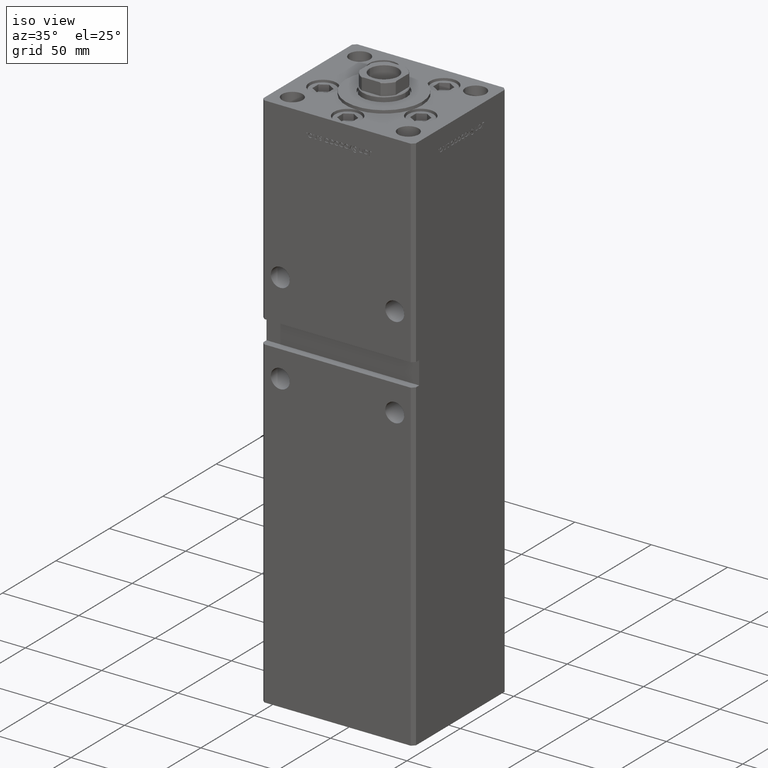
[diagram: clean part render]
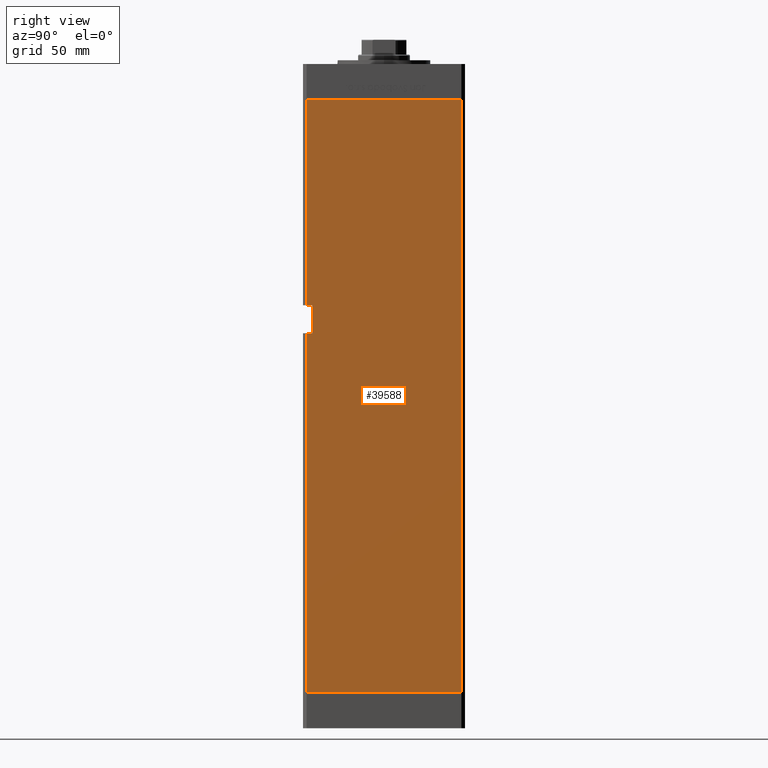
[diagram: tour spotlight — one face highlighted and labeled with its STEP entity id]
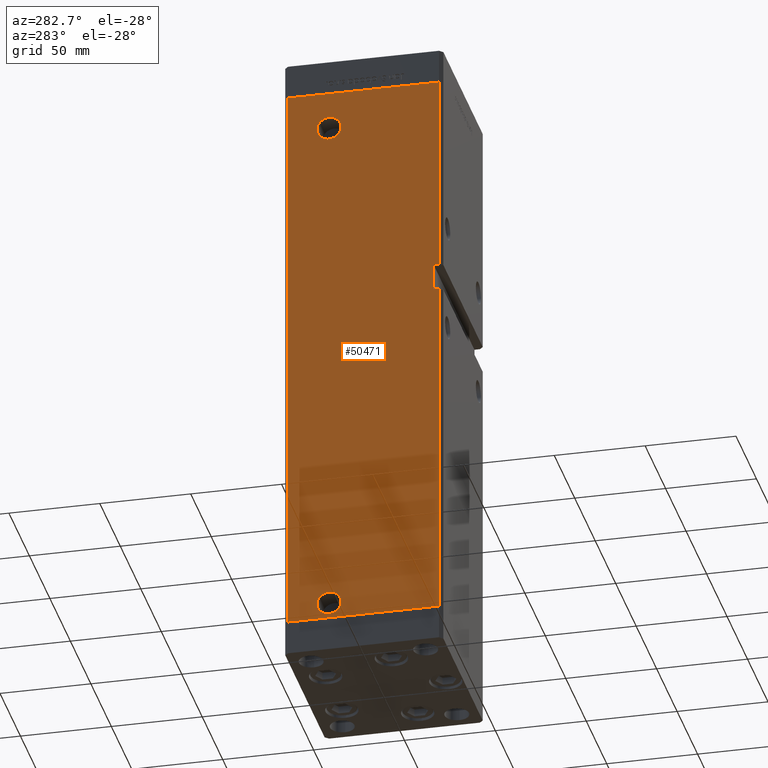
[diagram: tour spotlight — one face highlighted and labeled with its STEP entity id]
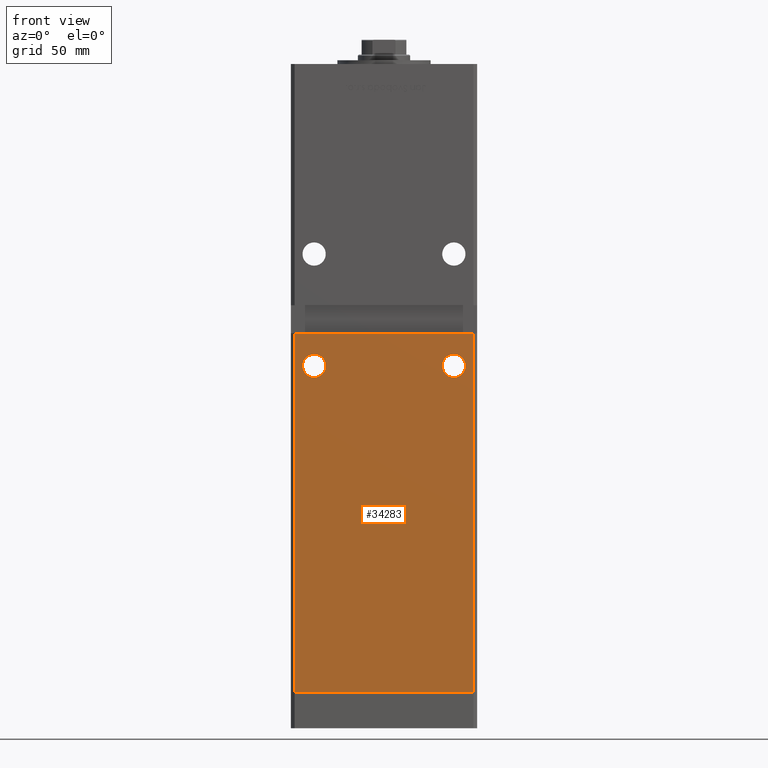
[diagram: tour spotlight — one face highlighted and labeled with its STEP entity id]
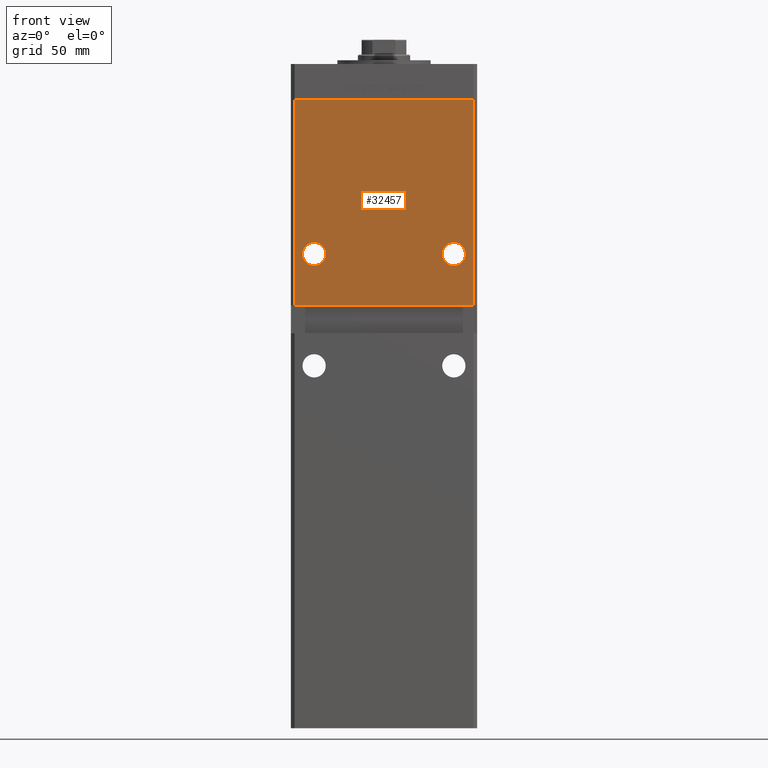
[diagram: tour spotlight — one face highlighted and labeled with its STEP entity id]
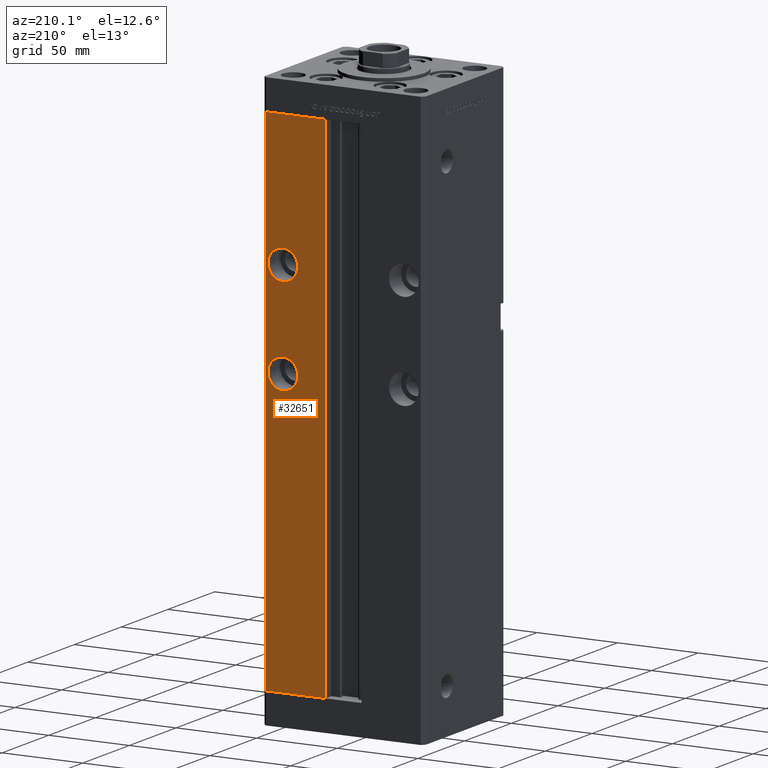
[diagram: tour spotlight — one face highlighted and labeled with its STEP entity id]
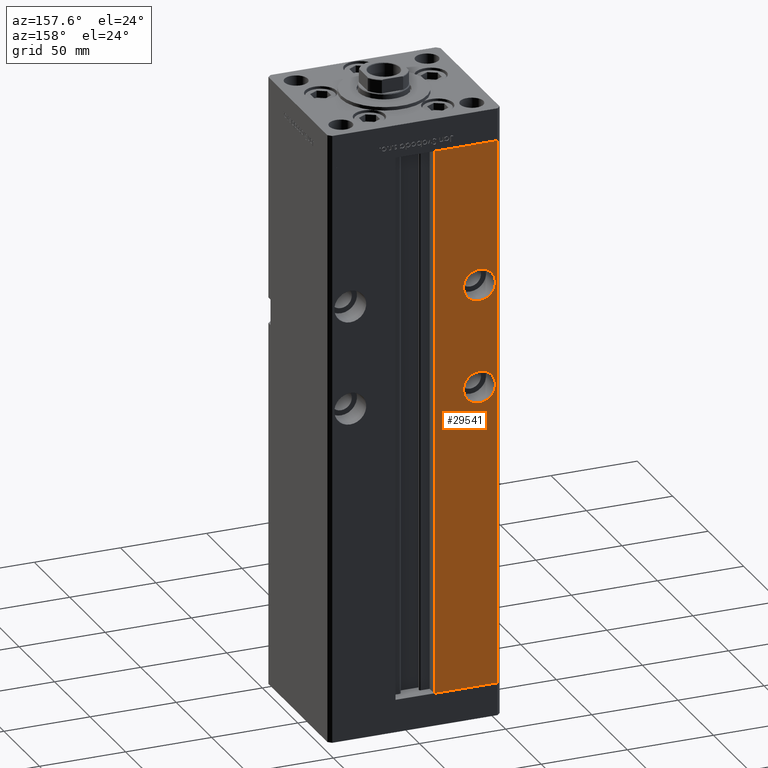
[diagram: tour spotlight — one face highlighted and labeled with its STEP entity id]
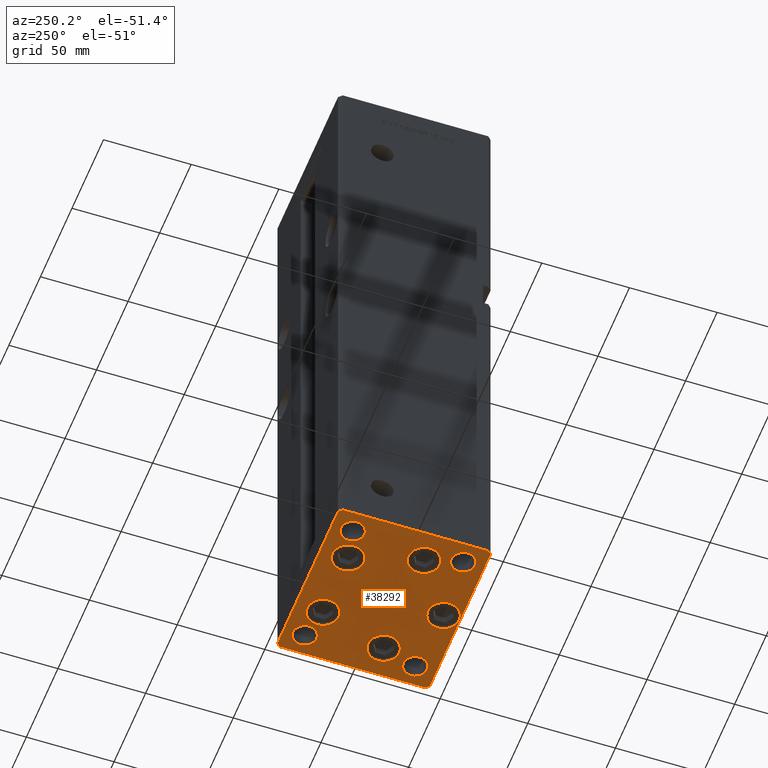
[diagram: tour spotlight — one face highlighted and labeled with its STEP entity id]
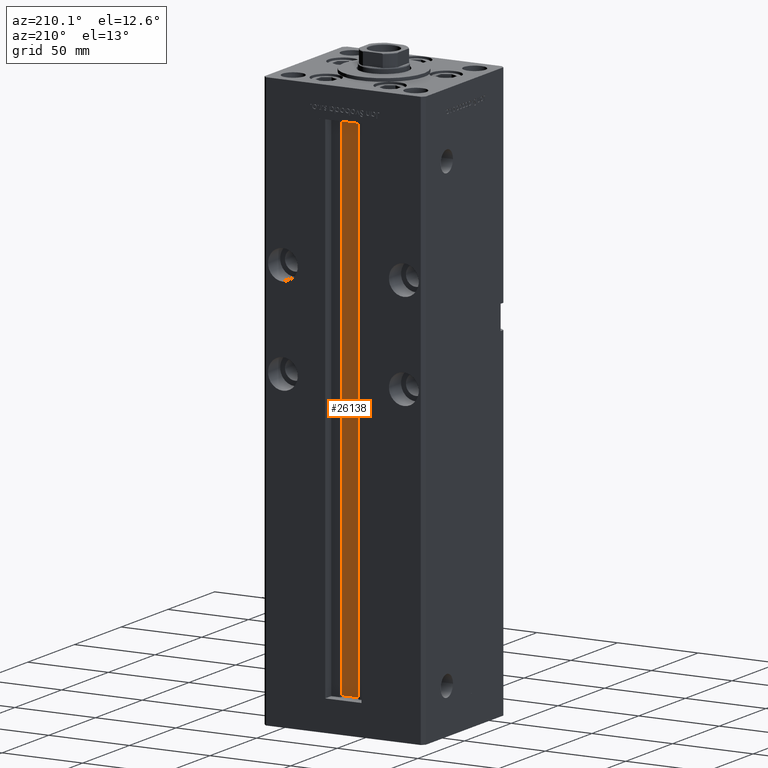
[diagram: tour spotlight — one face highlighted and labeled with its STEP entity id]
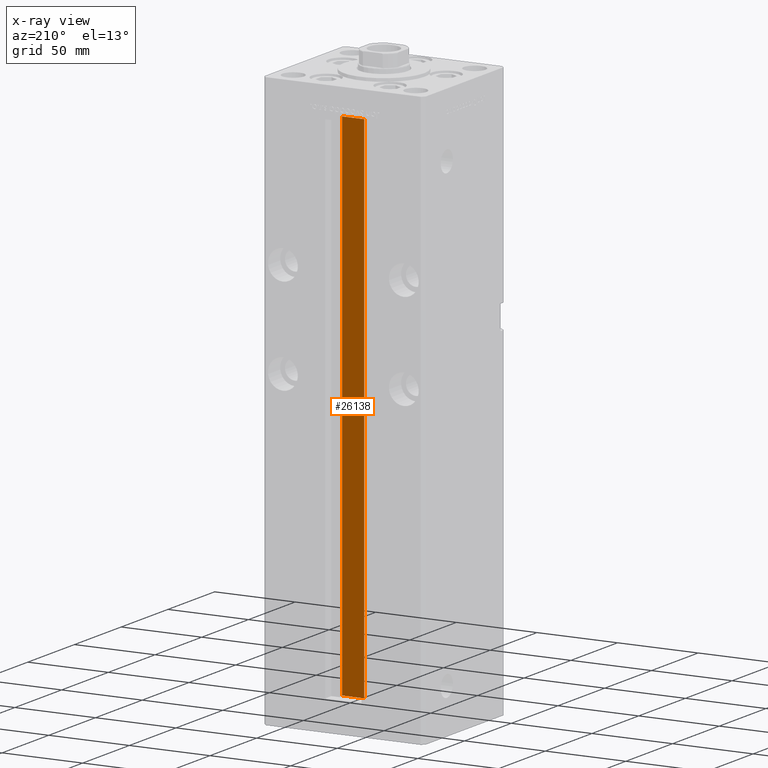
[diagram: x-ray of the same camera — body ghosted, this tour face saturated]
A machine part: a face-by-face anatomy tour. The part has 1212 B-rep faces; the first image is the clean iso view, then the 8 largest visible faces are spotlighted one at a time (largest first), each with its STEP entity span.

Face 1 — right view, entity #39588. In plain terms, the highlighted planar face has unit normal (1, -0, 0).
Definition (entity closure, byte-faithful):
#518 = CARTESIAN_POINT ( 'NONE',  ( 49.99999999999998579, -41.49999999999999289, 0.000000000000000000 ) ) ;
#1303 = EDGE_CURVE ( 'NONE', #34656, #32412, #18274, .T. ) ;
#1313 = DIRECTION ( 'NONE',  ( -3.344045254895050973E-16, -1.000000000000000000, 0.000000000000000000 ) ) ;
#2461 = CARTESIAN_POINT ( 'NONE',  ( 49.99999999999998579, -41.49999999999999289, 318.5000000000000000 ) ) ;
#3070 = VERTEX_POINT ( 'NONE', #46023 ) ;
#4665 = LINE ( 'NONE', #29370, #26124 ) ;
#4809 = EDGE_CURVE ( 'NONE', #21027, #32412, #17697, .T. ) ;
#6534 = LINE ( 'NONE', #22900, #48198 ) ;
#6585 = VECTOR ( 'NONE', #18816, 1000.000000000000000 ) ;
#6652 = VECTOR ( 'NONE', #1313, 1000.000000000000000 ) ;
#7519 = ORIENTED_EDGE ( 'NONE', *, *, #15995, .F. ) ;
#7737 = ORIENTED_EDGE ( 'NONE', *, *, #30156, .T. ) ;
#8245 = ORIENTED_EDGE ( 'NONE', *, *, #1303, .T. ) ;
#9253 = CARTESIAN_POINT ( 'NONE',  ( 50.00000000000000000, -38.50000000000000000, 208.0000000000000284 ) ) ;
#9294 = ORIENTED_EDGE ( 'NONE', *, *, #40056, .T. ) ;
#9684 = EDGE_CURVE ( 'NONE', #3070, #34656, #27831, .T. ) ;
#9894 = LINE ( 'NONE', #42154, #6652 ) ;
#10311 = LINE ( 'NONE', #47674, #14409 ) ;
#10367 = LINE ( 'NONE', #35093, #40373 ) ;
#10866 = VECTOR ( 'NONE', #30872, 1000.000000000000000 ) ;
#11140 = CARTESIAN_POINT ( 'NONE',  ( 49.99999999999998579, -38.49999999999999289, 193.0000000000000000 ) ) ;
#13416 = CARTESIAN_POINT ( 'NONE',  ( 50.00000000000000000, -38.50000000000000000, 208.0000000000000284 ) ) ;
#14165 = EDGE_CURVE ( 'NONE', #3070, #47010, #10367, .T. ) ;
#14409 = VECTOR ( 'NONE', #43096, 1000.000000000000000 ) ;
#15448 = CARTESIAN_POINT ( 'NONE',  ( 50.00000000000001421, 41.49999999999999289, 0.000000000000000000 ) ) ;
#15774 = DIRECTION ( 'NONE',  ( 3.344045254895050480E-16, 1.000000000000000000, 0.000000000000000000 ) ) ;
#15995 = EDGE_CURVE ( 'NONE', #49264, #21027, #6534, .T. ) ;
#17516 = DIRECTION ( 'NONE',  ( -0.000000000000000000, -0.000000000000000000, -1.000000000000000000 ) ) ;
#17697 = LINE ( 'NONE', #13416, #10866 ) ;
#18274 = LINE ( 'NONE', #2461, #6585 ) ;
#18816 = DIRECTION ( 'NONE',  ( -0.000000000000000000, -0.000000000000000000, -1.000000000000000000 ) ) ;
#18948 = DIRECTION ( 'NONE',  ( -0.000000000000000000, -0.000000000000000000, -1.000000000000000000 ) ) ;
#19810 = PLANE ( 'NONE',  #20395 ) ;
#20024 = ORIENTED_EDGE ( 'NONE', *, *, #4809, .F. ) ;
#20036 = VERTEX_POINT ( 'NONE', #518 ) ;
#20345 = FACE_OUTER_BOUND ( 'NONE', #24074, .T. ) ;
#20395 = AXIS2_PLACEMENT_3D ( 'NONE', #36759, #52606, #15774 ) ;
#21027 = VERTEX_POINT ( 'NONE', #9253 ) ;
#22900 = CARTESIAN_POINT ( 'NONE',  ( 50.00000000000000000, -38.50000000000000000, 208.0000000000000284 ) ) ;
#24054 = VECTOR ( 'NONE', #26778, 1000.000000000000000 ) ;
#24074 = EDGE_LOOP ( 'NONE', ( #9294, #7737, #43257, #46317, #50777, #8245, #20024, #7519 ) ) ;
#26124 = VECTOR ( 'NONE', #17516, 1000.000000000000000 ) ;
#26778 = DIRECTION ( 'NONE',  ( -3.344045254895050973E-16, -1.000000000000000000, 0.000000000000000000 ) ) ;
#27831 = LINE ( 'NONE', #47208, #24054 ) ;
#29370 = CARTESIAN_POINT ( 'NONE',  ( 49.99999999999998579, -41.49999999999999289, 318.5000000000000000 ) ) ;
#30156 = EDGE_CURVE ( 'NONE', #30560, #20036, #4665, .T. ) ;
#30560 = VERTEX_POINT ( 'NONE', #38952 ) ;
#30872 = DIRECTION ( 'NONE',  ( -0.000000000000000000, -1.000000000000000000, -0.000000000000000000 ) ) ;
#32412 = VERTEX_POINT ( 'NONE', #50570 ) ;
#34656 = VERTEX_POINT ( 'NONE', #51725 ) ;
#35093 = CARTESIAN_POINT ( 'NONE',  ( 50.00000000000001421, 41.49999999999999289, 318.5000000000000000 ) ) ;
#36759 = CARTESIAN_POINT ( 'NONE',  ( 50.00000000000001421, 41.49999999999999289, 318.5000000000000000 ) ) ;
#37439 = EDGE_CURVE ( 'NONE', #47010, #20036, #9894, .T. ) ;
#38952 = CARTESIAN_POINT ( 'NONE',  ( 49.99999999999999289, -41.49999999999999289, 193.0000000000000000 ) ) ;
#39588 = ADVANCED_FACE ( 'NONE', ( #20345 ), #19810, .T. ) ;
#40056 = EDGE_CURVE ( 'NONE', #49264, #30560, #10311, .T. ) ;
#40373 = VECTOR ( 'NONE', #18948, 1000.000000000000000 ) ;
#42154 = CARTESIAN_POINT ( 'NONE',  ( 50.00000000000001421, 41.49999999999999289, 0.000000000000000000 ) ) ;
#43096 = DIRECTION ( 'NONE',  ( -0.000000000000000000, -1.000000000000000000, -0.000000000000000000 ) ) ;
#43257 = ORIENTED_EDGE ( 'NONE', *, *, #37439, .F. ) ;
#44408 = DIRECTION ( 'NONE',  ( 4.625929269271481969E-16, -0.000000000000000000, 1.000000000000000000 ) ) ;
#46023 = CARTESIAN_POINT ( 'NONE',  ( 50.00000000000001421, 41.49999999999999289, 318.5000000000000000 ) ) ;
#46317 = ORIENTED_EDGE ( 'NONE', *, *, #14165, .F. ) ;
#47010 = VERTEX_POINT ( 'NONE', #15448 ) ;
#47208 = CARTESIAN_POINT ( 'NONE',  ( 50.00000000000001421, 41.49999999999999289, 318.5000000000000000 ) ) ;
#47674 = CARTESIAN_POINT ( 'NONE',  ( 49.99999999999999289, -38.50000000000000000, 193.0000000000000000 ) ) ;
#48198 = VECTOR ( 'NONE', #44408, 1000.000000000000000 ) ;
#49264 = VERTEX_POINT ( 'NONE', #11140 ) ;
#50570 = CARTESIAN_POINT ( 'NONE',  ( 50.00000000000000000, -41.49999999999999289, 208.0000000000000284 ) ) ;
#50777 = ORIENTED_EDGE ( 'NONE', *, *, #9684, .T. ) ;
#51725 = CARTESIAN_POINT ( 'NONE',  ( 49.99999999999998579, -41.49999999999999289, 318.5000000000000000 ) ) ;
#52606 = DIRECTION ( 'NONE',  ( 1.000000000000000000, -3.344045254895050480E-16, 0.000000000000000000 ) ) ;

Face 2 — auxiliary view, entity #50471. In plain terms, the highlighted planar face has unit normal (1, 0, 0).
Definition (entity closure, byte-faithful):
#94 = VECTOR ( 'NONE', #7381, 1000.000000000000000 ) ;
#690 = VERTEX_POINT ( 'NONE', #16755 ) ;
#1394 = DIRECTION ( 'NONE',  ( -0.000000000000000000, -0.000000000000000000, -1.000000000000000000 ) ) ;
#2140 = VERTEX_POINT ( 'NONE', #26643 ) ;
#3129 = AXIS2_PLACEMENT_3D ( 'NONE', #20551, #20288, #16258 ) ;
#3484 = EDGE_CURVE ( 'NONE', #19653, #45392, #40025, .T. ) ;
#4399 = VECTOR ( 'NONE', #13418, 1000.000000000000000 ) ;
#4441 = LINE ( 'NONE', #41514, #20926 ) ;
#4540 = EDGE_CURVE ( 'NONE', #25357, #30023, #22586, .T. ) ;
#5001 = DIRECTION ( 'NONE',  ( 0.000000000000000000, -1.000000000000000000, 0.000000000000000000 ) ) ;
#5068 = DIRECTION ( 'NONE',  ( -3.344045254895050480E-16, 1.000000000000000000, 0.000000000000000000 ) ) ;
#5421 = CARTESIAN_POINT ( 'NONE',  ( -49.99999999999998579, -41.49999999999999289, 318.5000000000000000 ) ) ;
#5795 = VECTOR ( 'NONE', #7475, 1000.000000000000000 ) ;
#6157 = CARTESIAN_POINT ( 'NONE',  ( -49.99999999999998579, -41.49999999999999289, 318.5000000000000000 ) ) ;
#6507 = AXIS2_PLACEMENT_3D ( 'NONE', #10870, #31566, #5068 ) ;
#6522 = CARTESIAN_POINT ( 'NONE',  ( -50.00000000000000711, 19.00000000000000000, 297.5000000000000000 ) ) ;
#7261 = AXIS2_PLACEMENT_3D ( 'NONE', #16924, #20940, #12902 ) ;
#7381 = DIRECTION ( 'NONE',  ( -4.625929269271481969E-16, 0.000000000000000000, -1.000000000000000000 ) ) ;
#7475 = DIRECTION ( 'NONE',  ( -0.000000000000000000, -1.000000000000000000, -0.000000000000000000 ) ) ;
#7592 = EDGE_LOOP ( 'NONE', ( #8386, #19124 ) ) ;
#7681 = DIRECTION ( 'NONE',  ( 3.344045254895050973E-16, -1.000000000000000000, 0.000000000000000000 ) ) ;
#8216 = ORIENTED_EDGE ( 'NONE', *, *, #50891, .T. ) ;
#8362 = ORIENTED_EDGE ( 'NONE', *, *, #4540, .F. ) ;
#8386 = ORIENTED_EDGE ( 'NONE', *, *, #33877, .F. ) ;
#8892 = DIRECTION ( 'NONE',  ( -0.000000000000000000, -0.000000000000000000, -1.000000000000000000 ) ) ;
#9338 = VERTEX_POINT ( 'NONE', #31820 ) ;
#10870 = CARTESIAN_POINT ( 'NONE',  ( -50.00000000000001421, 41.49999999999999289, 318.5000000000000000 ) ) ;
#11043 = CARTESIAN_POINT ( 'NONE',  ( -49.99999999999998579, -41.49999999999999289, 318.5000000000000000 ) ) ;
#11563 = VERTEX_POINT ( 'NONE', #24621 ) ;
#12902 = DIRECTION ( 'NONE',  ( 0.000000000000000000, -1.000000000000000000, 0.000000000000000000 ) ) ;
#12919 = LINE ( 'NONE', #45713, #25365 ) ;
#13418 = DIRECTION ( 'NONE',  ( -0.000000000000000000, -0.000000000000000000, -1.000000000000000000 ) ) ;
#14581 = CARTESIAN_POINT ( 'NONE',  ( -49.99999999999997868, -38.50000000000000000, 208.0000000000000284 ) ) ;
#14620 = FACE_BOUND ( 'NONE', #35861, .T. ) ;
#15032 = EDGE_CURVE ( 'NONE', #42393, #11563, #22520, .T. ) ;
#15122 = CARTESIAN_POINT ( 'NONE',  ( -49.99999999999998579, -41.49999999999994316, 193.0000000000000000 ) ) ;
#15684 = EDGE_CURVE ( 'NONE', #45204, #690, #48488, .T. ) ;
#16258 = DIRECTION ( 'NONE',  ( 0.000000000000000000, -1.000000000000000000, 0.000000000000000000 ) ) ;
#16494 = LINE ( 'NONE', #52531, #37554 ) ;
#16755 = CARTESIAN_POINT ( 'NONE',  ( -49.99999999999998579, -38.50000000000000000, 193.0000000000000000 ) ) ;
#16781 = CIRCLE ( 'NONE', #30576, 6.580000000000044480 ) ;
#16924 = CARTESIAN_POINT ( 'NONE',  ( -50.00000000000000711, 19.00000000000000000, 9.000000000000007105 ) ) ;
#17225 = CARTESIAN_POINT ( 'NONE',  ( -50.00000000000000711, 25.58000000000000185, 9.000000000000007105 ) ) ;
#17860 = ORIENTED_EDGE ( 'NONE', *, *, #38704, .T. ) ;
#19121 = CARTESIAN_POINT ( 'NONE',  ( -50.00000000000000711, 12.41999999999999638, 9.000000000000007105 ) ) ;
#19124 = ORIENTED_EDGE ( 'NONE', *, *, #34083, .F. ) ;
#19653 = VERTEX_POINT ( 'NONE', #19121 ) ;
#20288 = DIRECTION ( 'NONE',  ( -1.000000000000000000, -2.275047181608927644E-16, 0.000000000000000000 ) ) ;
#20551 = CARTESIAN_POINT ( 'NONE',  ( -50.00000000000000711, 19.00000000000000000, 9.000000000000007105 ) ) ;
#20854 = ORIENTED_EDGE ( 'NONE', *, *, #29522, .F. ) ;
#20926 = VECTOR ( 'NONE', #7681, 1000.000000000000000 ) ;
#20940 = DIRECTION ( 'NONE',  ( -1.000000000000000000, -2.275047181608927644E-16, 0.000000000000000000 ) ) ;
#21919 = AXIS2_PLACEMENT_3D ( 'NONE', #36431, #32671, #37227 ) ;
#22520 = LINE ( 'NONE', #6157, #4399 ) ;
#22586 = LINE ( 'NONE', #5421, #46886 ) ;
#22785 = LINE ( 'NONE', #39193, #5795 ) ;
#23505 = DIRECTION ( 'NONE',  ( 3.344045254895050973E-16, -1.000000000000000000, 0.000000000000000000 ) ) ;
#24621 = CARTESIAN_POINT ( 'NONE',  ( -49.99999999999997868, -41.50000000000000000, 208.0000000000000284 ) ) ;
#25241 = EDGE_CURVE ( 'NONE', #2140, #42393, #4441, .T. ) ;
#25357 = VERTEX_POINT ( 'NONE', #15122 ) ;
#25365 = VECTOR ( 'NONE', #8892, 1000.000000000000000 ) ;
#25488 = CARTESIAN_POINT ( 'NONE',  ( -50.00000000000001421, 41.49999999999999289, 0.000000000000000000 ) ) ;
#26569 = VERTEX_POINT ( 'NONE', #31636 ) ;
#26643 = CARTESIAN_POINT ( 'NONE',  ( -50.00000000000001421, 41.49999999999999289, 318.5000000000000000 ) ) ;
#26970 = CIRCLE ( 'NONE', #7261, 6.580000000000002736 ) ;
#29522 = EDGE_CURVE ( 'NONE', #45392, #19653, #26970, .T. ) ;
#30023 = VERTEX_POINT ( 'NONE', #40950 ) ;
#30576 = AXIS2_PLACEMENT_3D ( 'NONE', #6522, #35253, #5001 ) ;
#31028 = FACE_BOUND ( 'NONE', #7592, .T. ) ;
#31296 = PLANE ( 'NONE',  #6507 ) ;
#31566 = DIRECTION ( 'NONE',  ( 1.000000000000000000, 3.344045254895050480E-16, -0.000000000000000000 ) ) ;
#31636 = CARTESIAN_POINT ( 'NONE',  ( -50.00000000000000711, 25.58000000000004448, 297.5000000000000000 ) ) ;
#31672 = VERTEX_POINT ( 'NONE', #25488 ) ;
#31820 = CARTESIAN_POINT ( 'NONE',  ( -50.00000000000000711, 12.41999999999995552, 297.5000000000000000 ) ) ;
#32410 = ORIENTED_EDGE ( 'NONE', *, *, #3484, .F. ) ;
#32671 = DIRECTION ( 'NONE',  ( -1.000000000000000000, -2.275047181608927644E-16, 0.000000000000000000 ) ) ;
#33877 = EDGE_CURVE ( 'NONE', #9338, #26569, #50256, .T. ) ;
#34083 = EDGE_CURVE ( 'NONE', #26569, #9338, #16781, .T. ) ;
#34095 = VECTOR ( 'NONE', #51351, 1000.000000000000000 ) ;
#35253 = DIRECTION ( 'NONE',  ( -1.000000000000000000, -2.275047181608927644E-16, 0.000000000000000000 ) ) ;
#35638 = ORIENTED_EDGE ( 'NONE', *, *, #15684, .F. ) ;
#35861 = EDGE_LOOP ( 'NONE', ( #32410, #20854 ) ) ;
#36431 = CARTESIAN_POINT ( 'NONE',  ( -50.00000000000000711, 19.00000000000000000, 297.5000000000000000 ) ) ;
#37227 = DIRECTION ( 'NONE',  ( 0.000000000000000000, -1.000000000000000000, 0.000000000000000000 ) ) ;
#37554 = VECTOR ( 'NONE', #23505, 1000.000000000000000 ) ;
#37911 = EDGE_LOOP ( 'NONE', ( #8362, #41807, #35638, #44732, #39141, #48485, #8216, #17860 ) ) ;
#38019 = EDGE_CURVE ( 'NONE', #45204, #11563, #43819, .T. ) ;
#38704 = EDGE_CURVE ( 'NONE', #31672, #30023, #16494, .T. ) ;
#39014 = EDGE_CURVE ( 'NONE', #690, #25357, #22785, .T. ) ;
#39141 = ORIENTED_EDGE ( 'NONE', *, *, #15032, .F. ) ;
#39193 = CARTESIAN_POINT ( 'NONE',  ( -49.99999999999998579, -38.50000000000000000, 193.0000000000000000 ) ) ;
#39519 = CARTESIAN_POINT ( 'NONE',  ( -49.99999999999997868, -38.50000000000000000, 208.0000000000000284 ) ) ;
#39623 = CARTESIAN_POINT ( 'NONE',  ( -49.99999999999997868, -38.50000000000000000, 208.0000000000000284 ) ) ;
#40025 = CIRCLE ( 'NONE', #3129, 6.580000000000002736 ) ;
#40950 = CARTESIAN_POINT ( 'NONE',  ( -49.99999999999998579, -41.49999999999999289, 0.000000000000000000 ) ) ;
#41514 = CARTESIAN_POINT ( 'NONE',  ( -50.00000000000001421, 41.49999999999999289, 318.5000000000000000 ) ) ;
#41807 = ORIENTED_EDGE ( 'NONE', *, *, #39014, .F. ) ;
#42393 = VERTEX_POINT ( 'NONE', #11043 ) ;
#43819 = LINE ( 'NONE', #39519, #34095 ) ;
#44732 = ORIENTED_EDGE ( 'NONE', *, *, #38019, .T. ) ;
#45204 = VERTEX_POINT ( 'NONE', #14581 ) ;
#45392 = VERTEX_POINT ( 'NONE', #17225 ) ;
#45713 = CARTESIAN_POINT ( 'NONE',  ( -50.00000000000001421, 41.49999999999999289, 318.5000000000000000 ) ) ;
#46886 = VECTOR ( 'NONE', #1394, 1000.000000000000000 ) ;
#48485 = ORIENTED_EDGE ( 'NONE', *, *, #25241, .F. ) ;
#48488 = LINE ( 'NONE', #39623, #94 ) ;
#50256 = CIRCLE ( 'NONE', #21919, 6.580000000000044480 ) ;
#50471 = ADVANCED_FACE ( 'NONE', ( #51450, #14620, #31028 ), #31296, .F. ) ;
#50891 = EDGE_CURVE ( 'NONE', #2140, #31672, #12919, .T. ) ;
#51351 = DIRECTION ( 'NONE',  ( -0.000000000000000000, -1.000000000000000000, -0.000000000000000000 ) ) ;
#51450 = FACE_OUTER_BOUND ( 'NONE', #37911, .T. ) ;
#52531 = CARTESIAN_POINT ( 'NONE',  ( -50.00000000000001421, 41.49999999999999289, 0.000000000000000000 ) ) ;

Face 3 — front view, entity #34283. In plain terms, the highlighted planar face has unit normal (0, 1, 0).
Definition (entity closure, byte-faithful):
#725 = DIRECTION ( 'NONE',  ( 0.000000000000000000, 1.000000000000000000, 0.000000000000000000 ) ) ;
#1360 = VERTEX_POINT ( 'NONE', #7803 ) ;
#2126 = CARTESIAN_POINT ( 'NONE',  ( -49.99999999999998579, -43.50000000000000000, 193.0000000000000000 ) ) ;
#3686 = DIRECTION ( 'NONE',  ( 0.000000000000000000, -0.000000000000000000, 1.000000000000000000 ) ) ;
#3759 = DIRECTION ( 'NONE',  ( -0.000000000000000000, -0.000000000000000000, -1.000000000000000000 ) ) ;
#4075 = DIRECTION ( 'NONE',  ( 0.000000000000000000, 1.000000000000000000, 0.000000000000000000 ) ) ;
#4834 = EDGE_CURVE ( 'NONE', #21083, #10992, #38399, .T. ) ;
#5696 = ORIENTED_EDGE ( 'NONE', *, *, #44675, .T. ) ;
#5791 = AXIS2_PLACEMENT_3D ( 'NONE', #18227, #46743, #5904 ) ;
#5904 = DIRECTION ( 'NONE',  ( 0.000000000000000000, 0.000000000000000000, 1.000000000000000000 ) ) ;
#7424 = VECTOR ( 'NONE', #26038, 1000.000000000000000 ) ;
#7635 = LINE ( 'NONE', #39879, #16133 ) ;
#7803 = CARTESIAN_POINT ( 'NONE',  ( 37.50000000000000000, -43.50000000000000000, 181.7500000000000284 ) ) ;
#7806 = VERTEX_POINT ( 'NONE', #36491 ) ;
#7901 = CARTESIAN_POINT ( 'NONE',  ( -47.99999999999998579, -43.50000000000000000, 318.5000000000000000 ) ) ;
#8161 = DIRECTION ( 'NONE',  ( 1.000000000000000000, 0.000000000000000000, 0.000000000000000000 ) ) ;
#8812 = EDGE_LOOP ( 'NONE', ( #51781, #19723 ) ) ;
#10992 = VERTEX_POINT ( 'NONE', #47415 ) ;
#12130 = PLANE ( 'NONE',  #49460 ) ;
#14694 = ORIENTED_EDGE ( 'NONE', *, *, #23070, .T. ) ;
#16133 = VECTOR ( 'NONE', #8161, 1000.000000000000000 ) ;
#17256 = VERTEX_POINT ( 'NONE', #49953 ) ;
#17517 = VERTEX_POINT ( 'NONE', #29460 ) ;
#18227 = CARTESIAN_POINT ( 'NONE',  ( -37.50000000000000000, -43.50000000000000000, 175.5000000000000284 ) ) ;
#18380 = EDGE_CURVE ( 'NONE', #1360, #34456, #42208, .T. ) ;
#19598 = LINE ( 'NONE', #44611, #44205 ) ;
#19723 = ORIENTED_EDGE ( 'NONE', *, *, #49935, .T. ) ;
#20298 = DIRECTION ( 'NONE',  ( 0.000000000000000000, 1.000000000000000000, 0.000000000000000000 ) ) ;
#21083 = VERTEX_POINT ( 'NONE', #46075 ) ;
#22742 = CIRCLE ( 'NONE', #35597, 6.250000000000005329 ) ;
#22808 = CARTESIAN_POINT ( 'NONE',  ( -47.99999999999998579, -43.50000000000000000, 0.000000000000000000 ) ) ;
#22817 = VERTEX_POINT ( 'NONE', #22808 ) ;
#23070 = EDGE_CURVE ( 'NONE', #21083, #22817, #52497, .T. ) ;
#25279 = FACE_BOUND ( 'NONE', #34843, .T. ) ;
#25547 = ORIENTED_EDGE ( 'NONE', *, *, #49544, .F. ) ;
#26038 = DIRECTION ( 'NONE',  ( 1.000000000000000000, 0.000000000000000000, 0.000000000000000000 ) ) ;
#29460 = CARTESIAN_POINT ( 'NONE',  ( 47.99999999999998579, -43.50000000000000000, 0.000000000000000000 ) ) ;
#31883 = DIRECTION ( 'NONE',  ( 0.000000000000000000, 0.000000000000000000, 1.000000000000000000 ) ) ;
#32040 = AXIS2_PLACEMENT_3D ( 'NONE', #51603, #52395, #47320 ) ;
#34009 = CARTESIAN_POINT ( 'NONE',  ( 37.50000000000000000, -43.50000000000000000, 169.2500000000000000 ) ) ;
#34281 = DIRECTION ( 'NONE',  ( 0.000000000000000000, 0.000000000000000000, 1.000000000000000000 ) ) ;
#34283 = ADVANCED_FACE ( 'NONE', ( #25279, #49739, #49991 ), #12130, .F. ) ;
#34456 = VERTEX_POINT ( 'NONE', #34009 ) ;
#34843 = EDGE_LOOP ( 'NONE', ( #41035, #5696 ) ) ;
#35483 = VECTOR ( 'NONE', #36106, 1000.000000000000000 ) ;
#35597 = AXIS2_PLACEMENT_3D ( 'NONE', #42345, #725, #34281 ) ;
#36106 = DIRECTION ( 'NONE',  ( -0.000000000000000000, -0.000000000000000000, -1.000000000000000000 ) ) ;
#36491 = CARTESIAN_POINT ( 'NONE',  ( -37.50000000000000000, -43.50000000000000000, 169.2500000000000000 ) ) ;
#38399 = LINE ( 'NONE', #2126, #7424 ) ;
#39879 = CARTESIAN_POINT ( 'NONE',  ( -47.99999999999998579, -43.50000000000000000, 0.000000000000000000 ) ) ;
#40921 = EDGE_CURVE ( 'NONE', #22817, #17517, #7635, .T. ) ;
#41035 = ORIENTED_EDGE ( 'NONE', *, *, #43321, .T. ) ;
#42208 = CIRCLE ( 'NONE', #52517, 6.250000000000005329 ) ;
#42345 = CARTESIAN_POINT ( 'NONE',  ( 37.50000000000000000, -43.50000000000000000, 175.5000000000000284 ) ) ;
#43321 = EDGE_CURVE ( 'NONE', #17256, #7806, #52133, .T. ) ;
#43657 = ORIENTED_EDGE ( 'NONE', *, *, #4834, .F. ) ;
#44205 = VECTOR ( 'NONE', #3759, 1000.000000000000000 ) ;
#44611 = CARTESIAN_POINT ( 'NONE',  ( 47.99999999999998579, -43.50000000000000000, 318.5000000000000000 ) ) ;
#44675 = EDGE_CURVE ( 'NONE', #7806, #17256, #50907, .T. ) ;
#44921 = CARTESIAN_POINT ( 'NONE',  ( -47.99999999999998579, -43.50000000000000000, 318.5000000000000000 ) ) ;
#45319 = EDGE_LOOP ( 'NONE', ( #25547, #43657, #14694, #46872 ) ) ;
#46075 = CARTESIAN_POINT ( 'NONE',  ( -47.99999999999998579, -43.50000000000000000, 193.0000000000000000 ) ) ;
#46743 = DIRECTION ( 'NONE',  ( 0.000000000000000000, 1.000000000000000000, 0.000000000000000000 ) ) ;
#46872 = ORIENTED_EDGE ( 'NONE', *, *, #40921, .T. ) ;
#47320 = DIRECTION ( 'NONE',  ( 0.000000000000000000, 0.000000000000000000, 1.000000000000000000 ) ) ;
#47415 = CARTESIAN_POINT ( 'NONE',  ( 47.99999999999998579, -43.50000000000000000, 193.0000000000000000 ) ) ;
#49460 = AXIS2_PLACEMENT_3D ( 'NONE', #44921, #4075, #3686 ) ;
#49544 = EDGE_CURVE ( 'NONE', #10992, #17517, #19598, .T. ) ;
#49739 = FACE_BOUND ( 'NONE', #8812, .T. ) ;
#49935 = EDGE_CURVE ( 'NONE', #34456, #1360, #22742, .T. ) ;
#49953 = CARTESIAN_POINT ( 'NONE',  ( -37.50000000000000000, -43.50000000000000000, 181.7500000000000284 ) ) ;
#49991 = FACE_OUTER_BOUND ( 'NONE', #45319, .T. ) ;
#50907 = CIRCLE ( 'NONE', #32040, 6.250000000000005329 ) ;
#51603 = CARTESIAN_POINT ( 'NONE',  ( -37.50000000000000000, -43.50000000000000000, 175.5000000000000284 ) ) ;
#51781 = ORIENTED_EDGE ( 'NONE', *, *, #18380, .T. ) ;
#52133 = CIRCLE ( 'NONE', #5791, 6.250000000000005329 ) ;
#52306 = CARTESIAN_POINT ( 'NONE',  ( 37.50000000000000000, -43.50000000000000000, 175.5000000000000284 ) ) ;
#52395 = DIRECTION ( 'NONE',  ( 0.000000000000000000, 1.000000000000000000, 0.000000000000000000 ) ) ;
#52497 = LINE ( 'NONE', #7901, #35483 ) ;
#52517 = AXIS2_PLACEMENT_3D ( 'NONE', #52306, #20298, #31883 ) ;

Face 4 — front view, entity #32457. In plain terms, the highlighted planar face has unit normal (0, 1, 0).
Definition (entity closure, byte-faithful):
#365 = EDGE_CURVE ( 'NONE', #45851, #8902, #9621, .T. ) ;
#742 = EDGE_LOOP ( 'NONE', ( #30295, #8959, #25416, #8050 ) ) ;
#755 = CARTESIAN_POINT ( 'NONE',  ( 47.99999999999999289, -43.50000000000000000, 208.0000000000000284 ) ) ;
#1551 = VERTEX_POINT ( 'NONE', #31593 ) ;
#2202 = DIRECTION ( 'NONE',  ( 0.000000000000000000, -0.000000000000000000, 1.000000000000000000 ) ) ;
#3627 = CIRCLE ( 'NONE', #42243, 6.250000000000005329 ) ;
#3925 = DIRECTION ( 'NONE',  ( 0.000000000000000000, 0.000000000000000000, 1.000000000000000000 ) ) ;
#5419 = VECTOR ( 'NONE', #22396, 1000.000000000000000 ) ;
#7912 = VERTEX_POINT ( 'NONE', #755 ) ;
#8050 = ORIENTED_EDGE ( 'NONE', *, *, #365, .F. ) ;
#8902 = VERTEX_POINT ( 'NONE', #25733 ) ;
#8959 = ORIENTED_EDGE ( 'NONE', *, *, #10782, .F. ) ;
#9621 = LINE ( 'NONE', #32170, #39143 ) ;
#9985 = FACE_OUTER_BOUND ( 'NONE', #742, .T. ) ;
#10184 = VERTEX_POINT ( 'NONE', #42715 ) ;
#10250 = PLANE ( 'NONE',  #45967 ) ;
#10317 = CARTESIAN_POINT ( 'NONE',  ( -47.99999999999998579, -43.50000000000000000, 318.5000000000000000 ) ) ;
#10412 = EDGE_LOOP ( 'NONE', ( #30216, #41060 ) ) ;
#10547 = CIRCLE ( 'NONE', #49196, 6.250000000000005329 ) ;
#10782 = EDGE_CURVE ( 'NONE', #7912, #32793, #24071, .T. ) ;
#11721 = DIRECTION ( 'NONE',  ( -1.000000000000000000, -0.000000000000000000, -0.000000000000000000 ) ) ;
#12241 = CARTESIAN_POINT ( 'NONE',  ( -47.99999999999998579, -43.50000000000000000, 208.0000000000000284 ) ) ;
#15097 = CARTESIAN_POINT ( 'NONE',  ( 37.50000000000000000, -43.50000000000000000, 235.5000000000000284 ) ) ;
#16690 = DIRECTION ( 'NONE',  ( 0.000000000000000000, 1.000000000000000000, 0.000000000000000000 ) ) ;
#17145 = LINE ( 'NONE', #49943, #33115 ) ;
#18790 = CARTESIAN_POINT ( 'NONE',  ( -37.50000000000000000, -43.50000000000000000, 229.2500000000000000 ) ) ;
#18993 = DIRECTION ( 'NONE',  ( 1.000000000000000000, 0.000000000000000000, 0.000000000000000000 ) ) ;
#19175 = VERTEX_POINT ( 'NONE', #36723 ) ;
#19581 = EDGE_CURVE ( 'NONE', #1551, #19175, #3627, .T. ) ;
#21176 = EDGE_CURVE ( 'NONE', #10184, #31508, #25135, .T. ) ;
#21871 = EDGE_CURVE ( 'NONE', #19175, #1551, #10547, .T. ) ;
#22012 = EDGE_CURVE ( 'NONE', #45851, #32793, #39345, .T. ) ;
#22187 = CARTESIAN_POINT ( 'NONE',  ( -47.99999999999998579, -43.50000000000000000, 318.5000000000000000 ) ) ;
#22396 = DIRECTION ( 'NONE',  ( -0.000000000000000000, -0.000000000000000000, -1.000000000000000000 ) ) ;
#24071 = LINE ( 'NONE', #32667, #49703 ) ;
#25135 = CIRCLE ( 'NONE', #38860, 6.250000000000005329 ) ;
#25416 = ORIENTED_EDGE ( 'NONE', *, *, #52050, .F. ) ;
#25733 = CARTESIAN_POINT ( 'NONE',  ( 47.99999999999998579, -43.50000000000000000, 318.5000000000000000 ) ) ;
#26383 = DIRECTION ( 'NONE',  ( 0.000000000000000000, 1.000000000000000000, 0.000000000000000000 ) ) ;
#28289 = EDGE_CURVE ( 'NONE', #31508, #10184, #32108, .T. ) ;
#30216 = ORIENTED_EDGE ( 'NONE', *, *, #19581, .T. ) ;
#30295 = ORIENTED_EDGE ( 'NONE', *, *, #22012, .T. ) ;
#31239 = AXIS2_PLACEMENT_3D ( 'NONE', #37126, #16690, #32572 ) ;
#31247 = DIRECTION ( 'NONE',  ( 0.000000000000000000, 1.000000000000000000, 0.000000000000000000 ) ) ;
#31508 = VERTEX_POINT ( 'NONE', #18790 ) ;
#31593 = CARTESIAN_POINT ( 'NONE',  ( 37.50000000000000000, -43.50000000000000000, 241.7500000000000284 ) ) ;
#32108 = CIRCLE ( 'NONE', #31239, 6.250000000000005329 ) ;
#32170 = CARTESIAN_POINT ( 'NONE',  ( -47.99999999999998579, -43.50000000000000000, 318.5000000000000000 ) ) ;
#32457 = ADVANCED_FACE ( 'NONE', ( #46805, #47077, #9985 ), #10250, .F. ) ;
#32572 = DIRECTION ( 'NONE',  ( 0.000000000000000000, 0.000000000000000000, 1.000000000000000000 ) ) ;
#32667 = CARTESIAN_POINT ( 'NONE',  ( -49.99999999999997868, -43.50000000000000000, 208.0000000000000284 ) ) ;
#32793 = VERTEX_POINT ( 'NONE', #12241 ) ;
#33115 = VECTOR ( 'NONE', #33812, 1000.000000000000000 ) ;
#33558 = EDGE_LOOP ( 'NONE', ( #41862, #37225 ) ) ;
#33812 = DIRECTION ( 'NONE',  ( -0.000000000000000000, -0.000000000000000000, -1.000000000000000000 ) ) ;
#36422 = CARTESIAN_POINT ( 'NONE',  ( 37.50000000000000000, -43.50000000000000000, 235.5000000000000284 ) ) ;
#36723 = CARTESIAN_POINT ( 'NONE',  ( 37.50000000000000000, -43.50000000000000000, 229.2500000000000000 ) ) ;
#37126 = CARTESIAN_POINT ( 'NONE',  ( -37.50000000000000000, -43.50000000000000000, 235.5000000000000284 ) ) ;
#37225 = ORIENTED_EDGE ( 'NONE', *, *, #28289, .T. ) ;
#37934 = CARTESIAN_POINT ( 'NONE',  ( -47.99999999999998579, -43.50000000000000000, 318.5000000000000000 ) ) ;
#38860 = AXIS2_PLACEMENT_3D ( 'NONE', #51422, #42561, #42291 ) ;
#39143 = VECTOR ( 'NONE', #18993, 1000.000000000000000 ) ;
#39345 = LINE ( 'NONE', #10317, #5419 ) ;
#41060 = ORIENTED_EDGE ( 'NONE', *, *, #21871, .T. ) ;
#41862 = ORIENTED_EDGE ( 'NONE', *, *, #21176, .T. ) ;
#42243 = AXIS2_PLACEMENT_3D ( 'NONE', #15097, #31247, #48703 ) ;
#42291 = DIRECTION ( 'NONE',  ( 0.000000000000000000, 0.000000000000000000, 1.000000000000000000 ) ) ;
#42561 = DIRECTION ( 'NONE',  ( 0.000000000000000000, 1.000000000000000000, 0.000000000000000000 ) ) ;
#42715 = CARTESIAN_POINT ( 'NONE',  ( -37.50000000000000000, -43.50000000000000000, 241.7500000000000284 ) ) ;
#45038 = DIRECTION ( 'NONE',  ( 0.000000000000000000, 1.000000000000000000, 0.000000000000000000 ) ) ;
#45851 = VERTEX_POINT ( 'NONE', #22187 ) ;
#45967 = AXIS2_PLACEMENT_3D ( 'NONE', #37934, #26383, #2202 ) ;
#46805 = FACE_BOUND ( 'NONE', #10412, .T. ) ;
#47077 = FACE_BOUND ( 'NONE', #33558, .T. ) ;
#48703 = DIRECTION ( 'NONE',  ( 0.000000000000000000, 0.000000000000000000, 1.000000000000000000 ) ) ;
#49196 = AXIS2_PLACEMENT_3D ( 'NONE', #36422, #45038, #3925 ) ;
#49703 = VECTOR ( 'NONE', #11721, 1000.000000000000000 ) ;
#49943 = CARTESIAN_POINT ( 'NONE',  ( 47.99999999999998579, -43.50000000000000000, 318.5000000000000000 ) ) ;
#51422 = CARTESIAN_POINT ( 'NONE',  ( -37.50000000000000000, -43.50000000000000000, 235.5000000000000284 ) ) ;
#52050 = EDGE_CURVE ( 'NONE', #8902, #7912, #17145, .T. ) ;

Face 5 — auxiliary view, entity #32651. In plain terms, the highlighted planar face has unit normal (0, -1, 0).
Definition (entity closure, byte-faithful):
#272 = LINE ( 'NONE', #13424, #8304 ) ;
#969 = ORIENTED_EDGE ( 'NONE', *, *, #43685, .T. ) ;
#2018 = LINE ( 'NONE', #30242, #17590 ) ;
#2823 = DIRECTION ( 'NONE',  ( 0.000000000000000000, 0.000000000000000000, 1.000000000000000000 ) ) ;
#3110 = LINE ( 'NONE', #12225, #45283 ) ;
#4548 = CIRCLE ( 'NONE', #30277, 9.250000000000008882 ) ;
#5655 = EDGE_CURVE ( 'NONE', #46964, #9948, #272, .T. ) ;
#5899 = CARTESIAN_POINT ( 'NONE',  ( -11.24999999999999645, 43.50000000000000000, 318.5000000000000000 ) ) ;
#6369 = CARTESIAN_POINT ( 'NONE',  ( 11.24999999999999645, 43.50000000000000000, 0.000000000000000000 ) ) ;
#7431 = DIRECTION ( 'NONE',  ( -0.000000000000000000, -0.000000000000000000, 1.000000000000000000 ) ) ;
#8238 = VERTEX_POINT ( 'NONE', #24871 ) ;
#8304 = VECTOR ( 'NONE', #17436, 1000.000000000000000 ) ;
#8578 = ORIENTED_EDGE ( 'NONE', *, *, #45194, .F. ) ;
#9948 = VERTEX_POINT ( 'NONE', #34236 ) ;
#10109 = VERTEX_POINT ( 'NONE', #45692 ) ;
#10384 = LINE ( 'NONE', #6369, #25552 ) ;
#10590 = AXIS2_PLACEMENT_3D ( 'NONE', #13530, #35018, #38518 ) ;
#10641 = CARTESIAN_POINT ( 'NONE',  ( 48.00000000000000711, 43.50000000000000000, 0.000000000000000000 ) ) ;
#12225 = CARTESIAN_POINT ( 'NONE',  ( 48.00000000000000711, 43.50000000000000000, 318.5000000000000000 ) ) ;
#13192 = CIRCLE ( 'NONE', #34676, 9.250000000000008882 ) ;
#13424 = CARTESIAN_POINT ( 'NONE',  ( -11.24999999999999645, 43.50000000000000000, 0.000000000000000000 ) ) ;
#13530 = CARTESIAN_POINT ( 'NONE',  ( 37.50000000000000000, 43.50000000000000000, 235.5000000000000284 ) ) ;
#13930 = FACE_OUTER_BOUND ( 'NONE', #17405, .T. ) ;
#13979 = CARTESIAN_POINT ( 'NONE',  ( 37.50000000000000000, 43.50000000000000000, 175.5000000000000284 ) ) ;
#14239 = VERTEX_POINT ( 'NONE', #14919 ) ;
#14888 = ORIENTED_EDGE ( 'NONE', *, *, #51592, .F. ) ;
#14919 = CARTESIAN_POINT ( 'NONE',  ( 11.24999999999998934, 43.50000000000000000, 318.5000000000000000 ) ) ;
#15416 = CARTESIAN_POINT ( 'NONE',  ( 37.50000000000000000, 43.50000000000000000, 235.5000000000000284 ) ) ;
#16790 = CIRCLE ( 'NONE', #51987, 9.250000000000008882 ) ;
#17405 = EDGE_LOOP ( 'NONE', ( #20563, #969, #53107, #23015 ) ) ;
#17432 = FACE_BOUND ( 'NONE', #51159, .T. ) ;
#17436 = DIRECTION ( 'NONE',  ( -1.000000000000000000, 0.000000000000000000, 0.000000000000000000 ) ) ;
#17590 = VECTOR ( 'NONE', #21887, 1000.000000000000000 ) ;
#20563 = ORIENTED_EDGE ( 'NONE', *, *, #5655, .T. ) ;
#20925 = EDGE_CURVE ( 'NONE', #32811, #45317, #4548, .T. ) ;
#21887 = DIRECTION ( 'NONE',  ( 1.000000000000000000, 0.000000000000000000, 0.000000000000000000 ) ) ;
#21996 = FACE_BOUND ( 'NONE', #48628, .T. ) ;
#22260 = DIRECTION ( 'NONE',  ( 0.000000000000000000, -0.000000000000000000, -1.000000000000000000 ) ) ;
#23015 = ORIENTED_EDGE ( 'NONE', *, *, #38662, .T. ) ;
#24459 = CARTESIAN_POINT ( 'NONE',  ( 48.00000000000000711, 43.50000000000000000, 318.5000000000000000 ) ) ;
#24704 = VERTEX_POINT ( 'NONE', #24459 ) ;
#24871 = CARTESIAN_POINT ( 'NONE',  ( 37.50000000000000000, 43.50000000000000000, 244.7500000000000284 ) ) ;
#25552 = VECTOR ( 'NONE', #7431, 1000.000000000000000 ) ;
#27310 = DIRECTION ( 'NONE',  ( 0.000000000000000000, 0.000000000000000000, -1.000000000000000000 ) ) ;
#27563 = DIRECTION ( 'NONE',  ( 0.000000000000000000, 1.000000000000000000, -0.000000000000000000 ) ) ;
#28375 = EDGE_CURVE ( 'NONE', #45317, #32811, #13192, .T. ) ;
#30131 = DIRECTION ( 'NONE',  ( 0.000000000000000000, 0.000000000000000000, -1.000000000000000000 ) ) ;
#30242 = CARTESIAN_POINT ( 'NONE',  ( -11.24999999999999645, 43.50000000000000000, 318.5000000000000000 ) ) ;
#30277 = AXIS2_PLACEMENT_3D ( 'NONE', #39657, #27563, #27310 ) ;
#30344 = PLANE ( 'NONE',  #30496 ) ;
#30496 = AXIS2_PLACEMENT_3D ( 'NONE', #5899, #46739, #22260 ) ;
#31729 = ORIENTED_EDGE ( 'NONE', *, *, #20925, .F. ) ;
#31830 = DIRECTION ( 'NONE',  ( 0.000000000000000000, 1.000000000000000000, 0.000000000000000000 ) ) ;
#32651 = ADVANCED_FACE ( 'NONE', ( #21996, #17432, #13930 ), #30344, .F. ) ;
#32811 = VERTEX_POINT ( 'NONE', #47275 ) ;
#33631 = DIRECTION ( 'NONE',  ( 0.000000000000000000, 1.000000000000000000, -0.000000000000000000 ) ) ;
#34236 = CARTESIAN_POINT ( 'NONE',  ( 11.24999999999999645, 43.50000000000000000, 0.000000000000000000 ) ) ;
#34676 = AXIS2_PLACEMENT_3D ( 'NONE', #13979, #33631, #30131 ) ;
#35018 = DIRECTION ( 'NONE',  ( 0.000000000000000000, 1.000000000000000000, 0.000000000000000000 ) ) ;
#36369 = CIRCLE ( 'NONE', #10590, 9.250000000000008882 ) ;
#36941 = DIRECTION ( 'NONE',  ( -0.000000000000000000, -0.000000000000000000, -1.000000000000000000 ) ) ;
#38518 = DIRECTION ( 'NONE',  ( 0.000000000000000000, 0.000000000000000000, 1.000000000000000000 ) ) ;
#38662 = EDGE_CURVE ( 'NONE', #24704, #46964, #3110, .T. ) ;
#39581 = CARTESIAN_POINT ( 'NONE',  ( 37.50000000000000000, 43.50000000000000000, 184.7500000000000284 ) ) ;
#39657 = CARTESIAN_POINT ( 'NONE',  ( 37.50000000000000000, 43.50000000000000000, 175.5000000000000284 ) ) ;
#43685 = EDGE_CURVE ( 'NONE', #9948, #14239, #10384, .T. ) ;
#45194 = EDGE_CURVE ( 'NONE', #10109, #8238, #36369, .T. ) ;
#45283 = VECTOR ( 'NONE', #36941, 1000.000000000000000 ) ;
#45317 = VERTEX_POINT ( 'NONE', #39581 ) ;
#45692 = CARTESIAN_POINT ( 'NONE',  ( 37.50000000000000000, 43.50000000000000000, 226.2500000000000000 ) ) ;
#45954 = ORIENTED_EDGE ( 'NONE', *, *, #28375, .F. ) ;
#46739 = DIRECTION ( 'NONE',  ( 0.000000000000000000, -1.000000000000000000, 0.000000000000000000 ) ) ;
#46964 = VERTEX_POINT ( 'NONE', #10641 ) ;
#47275 = CARTESIAN_POINT ( 'NONE',  ( 37.50000000000000000, 43.50000000000000000, 166.2500000000000000 ) ) ;
#48628 = EDGE_LOOP ( 'NONE', ( #45954, #31729 ) ) ;
#51159 = EDGE_LOOP ( 'NONE', ( #14888, #8578 ) ) ;
#51514 = EDGE_CURVE ( 'NONE', #14239, #24704, #2018, .T. ) ;
#51592 = EDGE_CURVE ( 'NONE', #8238, #10109, #16790, .T. ) ;
#51987 = AXIS2_PLACEMENT_3D ( 'NONE', #15416, #31830, #2823 ) ;
#53107 = ORIENTED_EDGE ( 'NONE', *, *, #51514, .T. ) ;

Face 6 — auxiliary view, entity #29541. In plain terms, the highlighted planar face has unit normal (0, -1, 0).
Definition (entity closure, byte-faithful):
#128 = LINE ( 'NONE', #29151, #1618 ) ;
#338 = DIRECTION ( 'NONE',  ( 0.000000000000000000, 0.000000000000000000, 1.000000000000000000 ) ) ;
#405 = DIRECTION ( 'NONE',  ( -0.000000000000000000, -0.000000000000000000, -1.000000000000000000 ) ) ;
#823 = DIRECTION ( 'NONE',  ( 0.000000000000000000, -0.000000000000000000, -1.000000000000000000 ) ) ;
#1314 = AXIS2_PLACEMENT_3D ( 'NONE', #22661, #14601, #43098 ) ;
#1618 = VECTOR ( 'NONE', #12227, 1000.000000000000000 ) ;
#1637 = DIRECTION ( 'NONE',  ( -0.000000000000000000, -0.000000000000000000, 1.000000000000000000 ) ) ;
#2895 = EDGE_CURVE ( 'NONE', #40746, #51512, #25910, .T. ) ;
#3235 = EDGE_CURVE ( 'NONE', #5506, #26137, #14340, .T. ) ;
#3970 = AXIS2_PLACEMENT_3D ( 'NONE', #23595, #11237, #23327 ) ;
#4893 = CARTESIAN_POINT ( 'NONE',  ( -11.24999999999999645, 43.50000000000000000, 0.000000000000000000 ) ) ;
#5253 = VERTEX_POINT ( 'NONE', #33391 ) ;
#5506 = VERTEX_POINT ( 'NONE', #19090 ) ;
#5779 = ORIENTED_EDGE ( 'NONE', *, *, #2895, .F. ) ;
#5825 = CARTESIAN_POINT ( 'NONE',  ( -11.24999999999999645, 43.50000000000000000, 318.5000000000000000 ) ) ;
#6199 = CARTESIAN_POINT ( 'NONE',  ( -11.24999999999999645, 43.50000000000000000, 0.000000000000000000 ) ) ;
#6859 = CARTESIAN_POINT ( 'NONE',  ( -37.50000000000000000, 43.50000000000000000, 166.2500000000000000 ) ) ;
#8577 = DIRECTION ( 'NONE',  ( 0.000000000000000000, 1.000000000000000000, 0.000000000000000000 ) ) ;
#8618 = FACE_BOUND ( 'NONE', #46027, .T. ) ;
#8732 = CARTESIAN_POINT ( 'NONE',  ( -48.00000000000000711, 43.50000000000000000, 318.5000000000000000 ) ) ;
#9904 = CARTESIAN_POINT ( 'NONE',  ( -37.50000000000000000, 43.50000000000000000, 184.7500000000000284 ) ) ;
#10741 = CIRCLE ( 'NONE', #1314, 9.250000000000008882 ) ;
#11237 = DIRECTION ( 'NONE',  ( 0.000000000000000000, 1.000000000000000000, -0.000000000000000000 ) ) ;
#12227 = DIRECTION ( 'NONE',  ( 1.000000000000000000, 0.000000000000000000, 0.000000000000000000 ) ) ;
#12860 = DIRECTION ( 'NONE',  ( 0.000000000000000000, 0.000000000000000000, 1.000000000000000000 ) ) ;
#12957 = CARTESIAN_POINT ( 'NONE',  ( -37.50000000000000000, 43.50000000000000000, 175.5000000000000284 ) ) ;
#13473 = VECTOR ( 'NONE', #405, 1000.000000000000000 ) ;
#14135 = VERTEX_POINT ( 'NONE', #5825 ) ;
#14340 = CIRCLE ( 'NONE', #3970, 9.250000000000008882 ) ;
#14601 = DIRECTION ( 'NONE',  ( 0.000000000000000000, 1.000000000000000000, -0.000000000000000000 ) ) ;
#14809 = ORIENTED_EDGE ( 'NONE', *, *, #48659, .F. ) ;
#15298 = EDGE_LOOP ( 'NONE', ( #22064, #18782, #39166, #5779 ) ) ;
#16411 = CARTESIAN_POINT ( 'NONE',  ( -37.50000000000000000, 43.50000000000000000, 244.7500000000000284 ) ) ;
#16983 = DIRECTION ( 'NONE',  ( 0.000000000000000000, 1.000000000000000000, 0.000000000000000000 ) ) ;
#17363 = CIRCLE ( 'NONE', #24247, 9.250000000000008882 ) ;
#17443 = FACE_BOUND ( 'NONE', #21351, .T. ) ;
#18456 = ORIENTED_EDGE ( 'NONE', *, *, #32887, .F. ) ;
#18782 = ORIENTED_EDGE ( 'NONE', *, *, #19826, .F. ) ;
#19090 = CARTESIAN_POINT ( 'NONE',  ( -37.50000000000000000, 43.50000000000000000, 226.2500000000000000 ) ) ;
#19129 = VECTOR ( 'NONE', #48710, 1000.000000000000000 ) ;
#19323 = VERTEX_POINT ( 'NONE', #6859 ) ;
#19826 = EDGE_CURVE ( 'NONE', #5253, #14135, #42477, .T. ) ;
#21217 = DIRECTION ( 'NONE',  ( 0.000000000000000000, -1.000000000000000000, 0.000000000000000000 ) ) ;
#21328 = EDGE_CURVE ( 'NONE', #19323, #24011, #17363, .T. ) ;
#21351 = EDGE_LOOP ( 'NONE', ( #18456, #26382 ) ) ;
#21618 = CARTESIAN_POINT ( 'NONE',  ( -48.00000000000000711, 43.50000000000000000, 0.000000000000000000 ) ) ;
#22064 = ORIENTED_EDGE ( 'NONE', *, *, #41981, .T. ) ;
#22661 = CARTESIAN_POINT ( 'NONE',  ( -37.50000000000000000, 43.50000000000000000, 235.5000000000000284 ) ) ;
#23327 = DIRECTION ( 'NONE',  ( 0.000000000000000000, 0.000000000000000000, -1.000000000000000000 ) ) ;
#23595 = CARTESIAN_POINT ( 'NONE',  ( -37.50000000000000000, 43.50000000000000000, 235.5000000000000284 ) ) ;
#24011 = VERTEX_POINT ( 'NONE', #9904 ) ;
#24247 = AXIS2_PLACEMENT_3D ( 'NONE', #12957, #16983, #338 ) ;
#25910 = LINE ( 'NONE', #8732, #13473 ) ;
#26137 = VERTEX_POINT ( 'NONE', #16411 ) ;
#26382 = ORIENTED_EDGE ( 'NONE', *, *, #3235, .F. ) ;
#29151 = CARTESIAN_POINT ( 'NONE',  ( -11.24999999999999645, 43.50000000000000000, 318.5000000000000000 ) ) ;
#29541 = ADVANCED_FACE ( 'NONE', ( #17443, #8618, #29833 ), #45961, .F. ) ;
#29833 = FACE_OUTER_BOUND ( 'NONE', #15298, .T. ) ;
#32887 = EDGE_CURVE ( 'NONE', #26137, #5506, #10741, .T. ) ;
#33391 = CARTESIAN_POINT ( 'NONE',  ( -11.24999999999999645, 43.50000000000000000, 0.000000000000000000 ) ) ;
#39027 = CIRCLE ( 'NONE', #45897, 9.250000000000008882 ) ;
#39166 = ORIENTED_EDGE ( 'NONE', *, *, #44429, .T. ) ;
#39277 = ORIENTED_EDGE ( 'NONE', *, *, #21328, .F. ) ;
#39478 = CARTESIAN_POINT ( 'NONE',  ( -48.00000000000000711, 43.50000000000000000, 318.5000000000000000 ) ) ;
#39673 = VECTOR ( 'NONE', #1637, 1000.000000000000000 ) ;
#40631 = LINE ( 'NONE', #4893, #19129 ) ;
#40746 = VERTEX_POINT ( 'NONE', #39478 ) ;
#41981 = EDGE_CURVE ( 'NONE', #40746, #14135, #128, .T. ) ;
#42477 = LINE ( 'NONE', #6199, #39673 ) ;
#43098 = DIRECTION ( 'NONE',  ( 0.000000000000000000, 0.000000000000000000, -1.000000000000000000 ) ) ;
#44429 = EDGE_CURVE ( 'NONE', #5253, #51512, #40631, .T. ) ;
#45011 = AXIS2_PLACEMENT_3D ( 'NONE', #49466, #21217, #823 ) ;
#45897 = AXIS2_PLACEMENT_3D ( 'NONE', #46187, #8577, #12860 ) ;
#45961 = PLANE ( 'NONE',  #45011 ) ;
#46027 = EDGE_LOOP ( 'NONE', ( #14809, #39277 ) ) ;
#46187 = CARTESIAN_POINT ( 'NONE',  ( -37.50000000000000000, 43.50000000000000000, 175.5000000000000284 ) ) ;
#48659 = EDGE_CURVE ( 'NONE', #24011, #19323, #39027, .T. ) ;
#48710 = DIRECTION ( 'NONE',  ( -1.000000000000000000, 0.000000000000000000, 0.000000000000000000 ) ) ;
#49466 = CARTESIAN_POINT ( 'NONE',  ( -11.24999999999999645, 43.50000000000000000, 318.5000000000000000 ) ) ;
#51512 = VERTEX_POINT ( 'NONE', #21618 ) ;

Face 7 — auxiliary view, entity #38292. In plain terms, the highlighted planar face has unit normal (0, 0, -1).
Definition (entity closure, byte-faithful):
#296 = DIRECTION ( 'NONE',  ( 0.000000000000000000, -0.000000000000000000, -1.000000000000000000 ) ) ;
#497 = VERTEX_POINT ( 'NONE', #5537 ) ;
#1003 = DIRECTION ( 'NONE',  ( 1.000000000000000000, 0.000000000000000000, 0.000000000000000000 ) ) ;
#1057 = FACE_BOUND ( 'NONE', #3882, .T. ) ;
#1220 = ORIENTED_EDGE ( 'NONE', *, *, #31114, .T. ) ;
#1289 = VERTEX_POINT ( 'NONE', #1913 ) ;
#1587 = FACE_BOUND ( 'NONE', #12389, .T. ) ;
#1845 = FACE_BOUND ( 'NONE', #37820, .T. ) ;
#1913 = CARTESIAN_POINT ( 'NONE',  ( 31.25000000000000000, -31.49999999999999289, 0.000000000000000000 ) ) ;
#1952 = EDGE_CURVE ( 'NONE', #34861, #43533, #35610, .T. ) ;
#2014 = CARTESIAN_POINT ( 'NONE',  ( 47.99999999999999289, -43.50000000000001421, 0.000000000000000000 ) ) ;
#2086 = AXIS2_PLACEMENT_3D ( 'NONE', #2599, #18954, #10373 ) ;
#2168 = DIRECTION ( 'NONE',  ( 0.000000000000000000, -0.000000000000000000, -1.000000000000000000 ) ) ;
#2599 = CARTESIAN_POINT ( 'NONE',  ( 38.00000000000000000, -31.49999999999999289, 0.000000000000000000 ) ) ;
#3209 = VECTOR ( 'NONE', #10105, 1000.000000000000114 ) ;
#3328 = CARTESIAN_POINT ( 'NONE',  ( -32.05550741379015278, -11.33333333333333925, 0.000000000000000000 ) ) ;
#3782 = AXIS2_PLACEMENT_3D ( 'NONE', #16111, #28493, #36821 ) ;
#3791 = CARTESIAN_POINT ( 'NONE',  ( 28.82068048781372838, 27.62500000000000000, 0.000000000000000000 ) ) ;
#3854 = DIRECTION ( 'NONE',  ( 0.000000000000000000, -0.000000000000000000, -1.000000000000000000 ) ) ;
#3878 = VERTEX_POINT ( 'NONE', #33661 ) ;
#3882 = EDGE_LOOP ( 'NONE', ( #47802, #39021 ) ) ;
#4135 = DIRECTION ( 'NONE',  ( 1.000000000000000000, 0.000000000000000000, 0.000000000000000000 ) ) ;
#4138 = CARTESIAN_POINT ( 'NONE',  ( -50.00000000000000711, 41.49999999999995026, 0.000000000000000000 ) ) ;
#4285 = AXIS2_PLACEMENT_3D ( 'NONE', #41418, #296, #36852 ) ;
#4801 = EDGE_CURVE ( 'NONE', #43533, #21560, #18217, .T. ) ;
#5044 = VERTEX_POINT ( 'NONE', #32719 ) ;
#5073 = ORIENTED_EDGE ( 'NONE', *, *, #26851, .T. ) ;
#5352 = FACE_BOUND ( 'NONE', #44832, .T. ) ;
#5537 = CARTESIAN_POINT ( 'NONE',  ( -8.999999999999996447, -34.00000000000000000, 0.000000000000000000 ) ) ;
#5894 = DIRECTION ( 'NONE',  ( 1.000000000000000000, 0.000000000000000000, 0.000000000000000000 ) ) ;
#5920 = ORIENTED_EDGE ( 'NONE', *, *, #4801, .T. ) ;
#6827 = EDGE_CURVE ( 'NONE', #46904, #30238, #47818, .T. ) ;
#6994 = CARTESIAN_POINT ( 'NONE',  ( 4.163799117101000559E-15, -34.00000000000000000, 0.000000000000000000 ) ) ;
#7166 = EDGE_CURVE ( 'NONE', #19692, #31093, #18601, .T. ) ;
#8426 = CARTESIAN_POINT ( 'NONE',  ( 38.00000000000000000, -31.49999999999999289, 0.000000000000000000 ) ) ;
#8644 = DIRECTION ( 'NONE',  ( -1.000000000000000000, -3.614007241618350743E-16, 0.000000000000000000 ) ) ;
#9113 = PLANE ( 'NONE',  #10933 ) ;
#9453 = EDGE_CURVE ( 'NONE', #32561, #29186, #10977, .T. ) ;
#9480 = DIRECTION ( 'NONE',  ( 0.000000000000000000, -0.000000000000000000, -1.000000000000000000 ) ) ;
#9597 = EDGE_LOOP ( 'NONE', ( #40510, #14034 ) ) ;
#9630 = FACE_BOUND ( 'NONE', #36721, .T. ) ;
#9868 = ORIENTED_EDGE ( 'NONE', *, *, #21846, .T. ) ;
#10001 = CARTESIAN_POINT ( 'NONE',  ( -44.74999999999999289, -31.50000000000000000, 0.000000000000000000 ) ) ;
#10038 = VECTOR ( 'NONE', #21307, 1000.000000000000000 ) ;
#10083 = EDGE_CURVE ( 'NONE', #38885, #31138, #37796, .T. ) ;
#10105 = DIRECTION ( 'NONE',  ( 0.7071067811865474617, -0.7071067811865474617, 0.000000000000000000 ) ) ;
#10373 = DIRECTION ( 'NONE',  ( 1.000000000000000000, 0.000000000000000000, 0.000000000000000000 ) ) ;
#10477 = CARTESIAN_POINT ( 'NONE',  ( 32.05550741379015278, -11.33333333333333037, 0.000000000000000000 ) ) ;
#10661 = CIRCLE ( 'NONE', #47583, 6.749999999999999112 ) ;
#10933 = AXIS2_PLACEMENT_3D ( 'NONE', #50224, #13137, #29806 ) ;
#10977 = CIRCLE ( 'NONE', #17820, 9.000000000000000000 ) ;
#11111 = CARTESIAN_POINT ( 'NONE',  ( -37.99999999999999289, -31.50000000000000000, 0.000000000000000000 ) ) ;
#11538 = DIRECTION ( 'NONE',  ( 1.000000000000000000, 0.000000000000000000, 0.000000000000000000 ) ) ;
#11916 = DIRECTION ( 'NONE',  ( 0.000000000000000000, -0.000000000000000000, -1.000000000000000000 ) ) ;
#12110 = CARTESIAN_POINT ( 'NONE',  ( -10.82068048781373903, 27.62499999999999645, 0.000000000000000000 ) ) ;
#12310 = EDGE_CURVE ( 'NONE', #29186, #32561, #50610, .T. ) ;
#12389 = EDGE_LOOP ( 'NONE', ( #5073, #18122 ) ) ;
#12529 = DIRECTION ( 'NONE',  ( 1.000000000000000000, 0.000000000000000000, 0.000000000000000000 ) ) ;
#13137 = DIRECTION ( 'NONE',  ( -0.000000000000000000, 0.000000000000000000, 1.000000000000000000 ) ) ;
#13156 = CIRCLE ( 'NONE', #37200, 8.999999999999998224 ) ;
#13996 = CARTESIAN_POINT ( 'NONE',  ( 44.75000000000000000, -31.49999999999999289, 0.000000000000000000 ) ) ;
#14034 = ORIENTED_EDGE ( 'NONE', *, *, #7166, .F. ) ;
#14215 = AXIS2_PLACEMENT_3D ( 'NONE', #43777, #31148, #35699 ) ;
#14357 = DIRECTION ( 'NONE',  ( 0.7071067811865463515, 0.7071067811865487940, 0.000000000000000000 ) ) ;
#15715 = DIRECTION ( 'NONE',  ( -0.7071067811865474617, 0.7071067811865474617, 0.000000000000000000 ) ) ;
#16057 = EDGE_CURVE ( 'NONE', #43400, #5044, #36595, .T. ) ;
#16111 = CARTESIAN_POINT ( 'NONE',  ( 38.00000000000000000, 31.49999999999999289, 0.000000000000000000 ) ) ;
#16198 = DIRECTION ( 'NONE',  ( 0.000000000000000000, -0.000000000000000000, -1.000000000000000000 ) ) ;
#16215 = EDGE_CURVE ( 'NONE', #26067, #44659, #17255, .T. ) ;
#16281 = LINE ( 'NONE', #45588, #44162 ) ;
#16531 = DIRECTION ( 'NONE',  ( 0.000000000000000000, -0.000000000000000000, -1.000000000000000000 ) ) ;
#16746 = CIRCLE ( 'NONE', #48533, 8.999999999999998224 ) ;
#17255 = CIRCLE ( 'NONE', #44752, 9.000000000000001776 ) ;
#17272 = LINE ( 'NONE', #34210, #10038 ) ;
#17544 = AXIS2_PLACEMENT_3D ( 'NONE', #41543, #16531, #12529 ) ;
#17820 = AXIS2_PLACEMENT_3D ( 'NONE', #29118, #45516, #49279 ) ;
#17859 = LINE ( 'NONE', #2014, #52738 ) ;
#17901 = CARTESIAN_POINT ( 'NONE',  ( -38.00000000000000000, 31.50000000000000000, 0.000000000000000000 ) ) ;
#18122 = ORIENTED_EDGE ( 'NONE', *, *, #32608, .T. ) ;
#18145 = DIRECTION ( 'NONE',  ( 0.000000000000000000, -0.000000000000000000, -1.000000000000000000 ) ) ;
#18217 = LINE ( 'NONE', #47270, #34877 ) ;
#18256 = ORIENTED_EDGE ( 'NONE', *, *, #16057, .T. ) ;
#18277 = AXIS2_PLACEMENT_3D ( 'NONE', #42803, #9480, #26944 ) ;
#18345 = AXIS2_PLACEMENT_3D ( 'NONE', #38721, #30929, #31459 ) ;
#18601 = CIRCLE ( 'NONE', #40141, 6.749999999999999112 ) ;
#18954 = DIRECTION ( 'NONE',  ( 0.000000000000000000, -0.000000000000000000, -1.000000000000000000 ) ) ;
#18986 = EDGE_LOOP ( 'NONE', ( #52163, #48932 ) ) ;
#19687 = DIRECTION ( 'NONE',  ( 1.000000000000000000, 0.000000000000000000, 0.000000000000000000 ) ) ;
#19692 = VERTEX_POINT ( 'NONE', #33621 ) ;
#19973 = EDGE_CURVE ( 'NONE', #46034, #497, #40516, .T. ) ;
#20447 = CARTESIAN_POINT ( 'NONE',  ( 41.05550741379015278, -11.33333333333332860, 0.000000000000000000 ) ) ;
#20705 = VECTOR ( 'NONE', #8644, 1000.000000000000000 ) ;
#21307 = DIRECTION ( 'NONE',  ( -0.7071067811865463515, -0.7071067811865487940, 0.000000000000000000 ) ) ;
#21359 = CARTESIAN_POINT ( 'NONE',  ( -41.05550741379015278, -11.33333333333333925, 0.000000000000000000 ) ) ;
#21465 = DIRECTION ( 'NONE',  ( 0.000000000000000000, -0.000000000000000000, -1.000000000000000000 ) ) ;
#21560 = VERTEX_POINT ( 'NONE', #36762 ) ;
#21725 = CARTESIAN_POINT ( 'NONE',  ( 19.82068048781373193, 27.62500000000000000, 0.000000000000000000 ) ) ;
#21846 = EDGE_CURVE ( 'NONE', #47017, #43400, #23800, .T. ) ;
#21980 = FACE_BOUND ( 'NONE', #37382, .T. ) ;
#22247 = FACE_BOUND ( 'NONE', #18986, .T. ) ;
#22964 = DIRECTION ( 'NONE',  ( 0.000000000000000000, -0.000000000000000000, -1.000000000000000000 ) ) ;
#23016 = ORIENTED_EDGE ( 'NONE', *, *, #31250, .T. ) ;
#23488 = DIRECTION ( 'NONE',  ( 1.000000000000000000, 0.000000000000000000, 0.000000000000000000 ) ) ;
#23600 = ORIENTED_EDGE ( 'NONE', *, *, #25549, .T. ) ;
#23800 = LINE ( 'NONE', #40207, #25169 ) ;
#24263 = DIRECTION ( 'NONE',  ( 1.000000000000000000, 0.000000000000000000, 0.000000000000000000 ) ) ;
#24503 = CARTESIAN_POINT ( 'NONE',  ( 47.99999999999990763, 43.50000000000000000, 0.000000000000000000 ) ) ;
#24684 = EDGE_LOOP ( 'NONE', ( #26519, #5920, #23016, #46441, #9868, #18256, #42912, #23600 ) ) ;
#24800 = LINE ( 'NONE', #41196, #49193 ) ;
#24939 = CARTESIAN_POINT ( 'NONE',  ( -47.99999999999999289, -43.50000000000001421, 0.000000000000000000 ) ) ;
#25025 = ORIENTED_EDGE ( 'NONE', *, *, #46430, .F. ) ;
#25169 = VECTOR ( 'NONE', #15715, 1000.000000000000114 ) ;
#25549 = EDGE_CURVE ( 'NONE', #30046, #34861, #24800, .T. ) ;
#25591 = AXIS2_PLACEMENT_3D ( 'NONE', #11111, #11916, #24263 ) ;
#25783 = DIRECTION ( 'NONE',  ( 1.000000000000000000, 0.000000000000000000, 0.000000000000000000 ) ) ;
#25864 = EDGE_CURVE ( 'NONE', #44659, #26067, #39744, .T. ) ;
#26067 = VERTEX_POINT ( 'NONE', #20447 ) ;
#26239 = CIRCLE ( 'NONE', #14215, 6.749999999999999112 ) ;
#26519 = ORIENTED_EDGE ( 'NONE', *, *, #1952, .T. ) ;
#26640 = EDGE_CURVE ( 'NONE', #35385, #47017, #16281, .T. ) ;
#26851 = EDGE_CURVE ( 'NONE', #31229, #43100, #13156, .T. ) ;
#26944 = DIRECTION ( 'NONE',  ( 1.000000000000000000, 0.000000000000000000, 0.000000000000000000 ) ) ;
#27011 = CARTESIAN_POINT ( 'NONE',  ( 19.82068048781373193, 27.62500000000000000, 0.000000000000000000 ) ) ;
#27045 = CARTESIAN_POINT ( 'NONE',  ( -31.24999999999999289, -31.50000000000000000, 0.000000000000000000 ) ) ;
#27777 = DIRECTION ( 'NONE',  ( 1.000000000000000000, 0.000000000000000000, 0.000000000000000000 ) ) ;
#28383 = ORIENTED_EDGE ( 'NONE', *, *, #30001, .F. ) ;
#28493 = DIRECTION ( 'NONE',  ( -0.000000000000000000, 0.000000000000000000, 1.000000000000000000 ) ) ;
#28513 = EDGE_CURVE ( 'NONE', #497, #46034, #43237, .T. ) ;
#28669 = CIRCLE ( 'NONE', #3782, 6.749999999999999112 ) ;
#29118 = CARTESIAN_POINT ( 'NONE',  ( -19.82068048781373903, 27.62499999999999645, 0.000000000000000000 ) ) ;
#29186 = VERTEX_POINT ( 'NONE', #45757 ) ;
#29445 = ORIENTED_EDGE ( 'NONE', *, *, #28513, .T. ) ;
#29547 = CIRCLE ( 'NONE', #2086, 6.749999999999999112 ) ;
#29806 = DIRECTION ( 'NONE',  ( 1.000000000000000000, 0.000000000000000000, 0.000000000000000000 ) ) ;
#30001 = EDGE_CURVE ( 'NONE', #32865, #3878, #10661, .T. ) ;
#30046 = VERTEX_POINT ( 'NONE', #4138 ) ;
#30238 = VERTEX_POINT ( 'NONE', #10001 ) ;
#30512 = EDGE_LOOP ( 'NONE', ( #38352, #33865 ) ) ;
#30929 = DIRECTION ( 'NONE',  ( 0.000000000000000000, -0.000000000000000000, -1.000000000000000000 ) ) ;
#31093 = VERTEX_POINT ( 'NONE', #33216 ) ;
#31114 = EDGE_CURVE ( 'NONE', #31138, #38885, #52782, .T. ) ;
#31138 = VERTEX_POINT ( 'NONE', #21359 ) ;
#31148 = DIRECTION ( 'NONE',  ( -0.000000000000000000, 0.000000000000000000, 1.000000000000000000 ) ) ;
#31229 = VERTEX_POINT ( 'NONE', #46893 ) ;
#31250 = EDGE_CURVE ( 'NONE', #21560, #35385, #17859, .T. ) ;
#31459 = DIRECTION ( 'NONE',  ( 1.000000000000000000, 0.000000000000000000, 0.000000000000000000 ) ) ;
#32561 = VERTEX_POINT ( 'NONE', #12110 ) ;
#32608 = EDGE_CURVE ( 'NONE', #43100, #31229, #16746, .T. ) ;
#32719 = CARTESIAN_POINT ( 'NONE',  ( -48.00000000000000711, 43.49999999999996447, 0.000000000000000000 ) ) ;
#32865 = VERTEX_POINT ( 'NONE', #45558 ) ;
#33216 = CARTESIAN_POINT ( 'NONE',  ( -31.25000000000000000, 31.50000000000000000, 0.000000000000000000 ) ) ;
#33561 = EDGE_CURVE ( 'NONE', #31093, #19692, #26239, .T. ) ;
#33565 = CARTESIAN_POINT ( 'NONE',  ( -50.00000000000000000, -41.50000000000000000, 0.000000000000000000 ) ) ;
#33621 = CARTESIAN_POINT ( 'NONE',  ( -44.75000000000000000, 31.50000000000000000, 0.000000000000000000 ) ) ;
#33661 = CARTESIAN_POINT ( 'NONE',  ( 31.25000000000000000, 31.49999999999999289, 0.000000000000000000 ) ) ;
#33825 = FACE_OUTER_BOUND ( 'NONE', #24684, .T. ) ;
#33865 = ORIENTED_EDGE ( 'NONE', *, *, #46920, .T. ) ;
#34210 = CARTESIAN_POINT ( 'NONE',  ( -48.00000000000000711, 43.49999999999996447, 0.000000000000000000 ) ) ;
#34304 = DIRECTION ( 'NONE',  ( -0.000000000000000000, 0.000000000000000000, 1.000000000000000000 ) ) ;
#34549 = CARTESIAN_POINT ( 'NONE',  ( -37.99999999999999289, -31.50000000000000000, 0.000000000000000000 ) ) ;
#34861 = VERTEX_POINT ( 'NONE', #33565 ) ;
#34877 = VECTOR ( 'NONE', #5894, 1000.000000000000000 ) ;
#35385 = VERTEX_POINT ( 'NONE', #48508 ) ;
#35610 = LINE ( 'NONE', #52015, #3209 ) ;
#35699 = DIRECTION ( 'NONE',  ( 1.000000000000000000, 0.000000000000000000, 0.000000000000000000 ) ) ;
#35997 = CARTESIAN_POINT ( 'NONE',  ( 23.05550741379014923, -11.33333333333333037, 0.000000000000000000 ) ) ;
#36101 = DIRECTION ( 'NONE',  ( -0.000000000000000000, 0.000000000000000000, 1.000000000000000000 ) ) ;
#36144 = CARTESIAN_POINT ( 'NONE',  ( 9.000000000000003553, -34.00000000000000000, 0.000000000000000000 ) ) ;
#36595 = LINE ( 'NONE', #24503, #20705 ) ;
#36721 = EDGE_LOOP ( 'NONE', ( #28383, #25025 ) ) ;
#36762 = CARTESIAN_POINT ( 'NONE',  ( 47.99999999999999289, -43.50000000000001421, 0.000000000000000000 ) ) ;
#36821 = DIRECTION ( 'NONE',  ( 1.000000000000000000, 0.000000000000000000, 0.000000000000000000 ) ) ;
#36852 = DIRECTION ( 'NONE',  ( 1.000000000000000000, 0.000000000000000000, 0.000000000000000000 ) ) ;
#36877 = CARTESIAN_POINT ( 'NONE',  ( -23.05550741379014923, -11.33333333333333748, 0.000000000000000000 ) ) ;
#36921 = EDGE_CURVE ( 'NONE', #5044, #30046, #17272, .T. ) ;
#37200 = AXIS2_PLACEMENT_3D ( 'NONE', #27011, #22964, #23488 ) ;
#37382 = EDGE_LOOP ( 'NONE', ( #1220, #37824 ) ) ;
#37513 = DIRECTION ( 'NONE',  ( -1.003213576468515193E-15, 1.000000000000000000, 0.000000000000000000 ) ) ;
#37796 = CIRCLE ( 'NONE', #52265, 9.000000000000001776 ) ;
#37820 = EDGE_LOOP ( 'NONE', ( #29445, #49961 ) ) ;
#37824 = ORIENTED_EDGE ( 'NONE', *, *, #10083, .T. ) ;
#38292 = ADVANCED_FACE ( 'NONE', ( #5352, #1587, #1057, #1845, #21980, #9630, #45937, #42691, #33825, #22247 ), #9113, .T. ) ;
#38352 = ORIENTED_EDGE ( 'NONE', *, *, #44048, .T. ) ;
#38721 = CARTESIAN_POINT ( 'NONE',  ( 4.163799117101000559E-15, -34.00000000000000000, 0.000000000000000000 ) ) ;
#38885 = VERTEX_POINT ( 'NONE', #36877 ) ;
#39021 = ORIENTED_EDGE ( 'NONE', *, *, #16215, .T. ) ;
#39433 = VERTEX_POINT ( 'NONE', #13996 ) ;
#39724 = ORIENTED_EDGE ( 'NONE', *, *, #12310, .T. ) ;
#39731 = CARTESIAN_POINT ( 'NONE',  ( 47.99999999999990763, 43.50000000000000000, 0.000000000000000000 ) ) ;
#39744 = CIRCLE ( 'NONE', #18277, 9.000000000000001776 ) ;
#39755 = CIRCLE ( 'NONE', #42315, 6.749999999999999112 ) ;
#40141 = AXIS2_PLACEMENT_3D ( 'NONE', #17901, #34304, #1003 ) ;
#40163 = EDGE_CURVE ( 'NONE', #30238, #46904, #47041, .T. ) ;
#40207 = CARTESIAN_POINT ( 'NONE',  ( 49.99999999999992184, 41.49999999999998579, 0.000000000000000000 ) ) ;
#40510 = ORIENTED_EDGE ( 'NONE', *, *, #33561, .F. ) ;
#40516 = CIRCLE ( 'NONE', #44824, 9.000000000000000000 ) ;
#40933 = DIRECTION ( 'NONE',  ( 8.360113137237628665E-17, -1.000000000000000000, 0.000000000000000000 ) ) ;
#41196 = CARTESIAN_POINT ( 'NONE',  ( -50.00000000000000711, 41.49999999999995026, 0.000000000000000000 ) ) ;
#41418 = CARTESIAN_POINT ( 'NONE',  ( -19.82068048781373903, 27.62499999999999645, 0.000000000000000000 ) ) ;
#41543 = CARTESIAN_POINT ( 'NONE',  ( -32.05550741379015278, -11.33333333333333925, 0.000000000000000000 ) ) ;
#42315 = AXIS2_PLACEMENT_3D ( 'NONE', #8426, #16198, #4135 ) ;
#42691 = FACE_BOUND ( 'NONE', #9597, .T. ) ;
#42803 = CARTESIAN_POINT ( 'NONE',  ( 32.05550741379015278, -11.33333333333333037, 0.000000000000000000 ) ) ;
#42888 = DIRECTION ( 'NONE',  ( 1.000000000000000000, 0.000000000000000000, 0.000000000000000000 ) ) ;
#42912 = ORIENTED_EDGE ( 'NONE', *, *, #36921, .T. ) ;
#43100 = VERTEX_POINT ( 'NONE', #3791 ) ;
#43237 = CIRCLE ( 'NONE', #18345, 9.000000000000000000 ) ;
#43400 = VERTEX_POINT ( 'NONE', #39731 ) ;
#43533 = VERTEX_POINT ( 'NONE', #24939 ) ;
#43777 = CARTESIAN_POINT ( 'NONE',  ( -38.00000000000000000, 31.50000000000000000, 0.000000000000000000 ) ) ;
#44048 = EDGE_CURVE ( 'NONE', #39433, #1289, #39755, .T. ) ;
#44162 = VECTOR ( 'NONE', #37513, 1000.000000000000000 ) ;
#44659 = VERTEX_POINT ( 'NONE', #35997 ) ;
#44752 = AXIS2_PLACEMENT_3D ( 'NONE', #10477, #2168, #51594 ) ;
#44824 = AXIS2_PLACEMENT_3D ( 'NONE', #6994, #52387, #11538 ) ;
#44832 = EDGE_LOOP ( 'NONE', ( #39724, #50732 ) ) ;
#44984 = CARTESIAN_POINT ( 'NONE',  ( 38.00000000000000000, 31.49999999999999289, 0.000000000000000000 ) ) ;
#45516 = DIRECTION ( 'NONE',  ( 0.000000000000000000, -0.000000000000000000, -1.000000000000000000 ) ) ;
#45558 = CARTESIAN_POINT ( 'NONE',  ( 44.75000000000000000, 31.49999999999999289, 0.000000000000000000 ) ) ;
#45588 = CARTESIAN_POINT ( 'NONE',  ( 50.00000000000000000, -41.49999999999999289, 0.000000000000000000 ) ) ;
#45757 = CARTESIAN_POINT ( 'NONE',  ( -28.82068048781373548, 27.62499999999999645, 0.000000000000000000 ) ) ;
#45937 = FACE_BOUND ( 'NONE', #30512, .T. ) ;
#46034 = VERTEX_POINT ( 'NONE', #36144 ) ;
#46430 = EDGE_CURVE ( 'NONE', #3878, #32865, #28669, .T. ) ;
#46441 = ORIENTED_EDGE ( 'NONE', *, *, #26640, .T. ) ;
#46893 = CARTESIAN_POINT ( 'NONE',  ( 10.82068048781373193, 27.62500000000000000, 0.000000000000000000 ) ) ;
#46904 = VERTEX_POINT ( 'NONE', #27045 ) ;
#46920 = EDGE_CURVE ( 'NONE', #1289, #39433, #29547, .T. ) ;
#47017 = VERTEX_POINT ( 'NONE', #48524 ) ;
#47041 = CIRCLE ( 'NONE', #25591, 6.749999999999999112 ) ;
#47270 = CARTESIAN_POINT ( 'NONE',  ( -47.99999999999999289, -43.50000000000001421, 0.000000000000000000 ) ) ;
#47583 = AXIS2_PLACEMENT_3D ( 'NONE', #44984, #36101, #27777 ) ;
#47802 = ORIENTED_EDGE ( 'NONE', *, *, #25864, .T. ) ;
#47818 = CIRCLE ( 'NONE', #52104, 6.749999999999999112 ) ;
#48508 = CARTESIAN_POINT ( 'NONE',  ( 50.00000000000000000, -41.49999999999999289, 0.000000000000000000 ) ) ;
#48524 = CARTESIAN_POINT ( 'NONE',  ( 49.99999999999992184, 41.49999999999998579, 0.000000000000000000 ) ) ;
#48533 = AXIS2_PLACEMENT_3D ( 'NONE', #21725, #21465, #25783 ) ;
#48932 = ORIENTED_EDGE ( 'NONE', *, *, #40163, .T. ) ;
#49193 = VECTOR ( 'NONE', #40933, 1000.000000000000000 ) ;
#49279 = DIRECTION ( 'NONE',  ( 1.000000000000000000, 0.000000000000000000, 0.000000000000000000 ) ) ;
#49961 = ORIENTED_EDGE ( 'NONE', *, *, #19973, .T. ) ;
#50224 = CARTESIAN_POINT ( 'NONE',  ( 0.000000000000000000, 0.000000000000000000, 0.000000000000000000 ) ) ;
#50610 = CIRCLE ( 'NONE', #4285, 9.000000000000000000 ) ;
#50732 = ORIENTED_EDGE ( 'NONE', *, *, #9453, .T. ) ;
#51594 = DIRECTION ( 'NONE',  ( 1.000000000000000000, 0.000000000000000000, 0.000000000000000000 ) ) ;
#52015 = CARTESIAN_POINT ( 'NONE',  ( -50.00000000000000000, -41.50000000000000000, 0.000000000000000000 ) ) ;
#52104 = AXIS2_PLACEMENT_3D ( 'NONE', #34549, #18145, #42888 ) ;
#52163 = ORIENTED_EDGE ( 'NONE', *, *, #6827, .T. ) ;
#52265 = AXIS2_PLACEMENT_3D ( 'NONE', #3328, #3854, #19687 ) ;
#52387 = DIRECTION ( 'NONE',  ( 0.000000000000000000, -0.000000000000000000, -1.000000000000000000 ) ) ;
#52738 = VECTOR ( 'NONE', #14357, 1000.000000000000000 ) ;
#52782 = CIRCLE ( 'NONE', #17544, 9.000000000000001776 ) ;

Face 8 — auxiliary view, entity #26138. An x-ray twin of the same camera follows (body ghosted, this face saturated) — the face is partly hidden behind the body. In plain terms, the highlighted planar face has unit normal (0, -1, 0).
Definition (entity closure, byte-faithful):
#34 = ORIENTED_EDGE ( 'NONE', *, *, #53000, .T. ) ;
#271 = AXIS2_PLACEMENT_3D ( 'NONE', #33358, #40899, #25558 ) ;
#684 = CARTESIAN_POINT ( 'NONE',  ( 6.876153656360465050, 32.99999999999986500, 0.000000000000000000 ) ) ;
#1764 = DIRECTION ( 'NONE',  ( -0.000000000000000000, -0.000000000000000000, 1.000000000000000000 ) ) ;
#3022 = CARTESIAN_POINT ( 'NONE',  ( 6.876153656360465050, 32.99999999999986500, 318.5000000000000000 ) ) ;
#3311 = VECTOR ( 'NONE', #3841, 1000.000000000000000 ) ;
#3841 = DIRECTION ( 'NONE',  ( -1.000000000000000000, 0.000000000000000000, 0.000000000000000000 ) ) ;
#4984 = DIRECTION ( 'NONE',  ( -0.000000000000000000, -0.000000000000000000, 1.000000000000000000 ) ) ;
#9158 = ORIENTED_EDGE ( 'NONE', *, *, #9879, .F. ) ;
#9879 = EDGE_CURVE ( 'NONE', #14863, #18907, #17296, .T. ) ;
#12246 = EDGE_CURVE ( 'NONE', #33769, #14863, #41160, .T. ) ;
#12692 = CARTESIAN_POINT ( 'NONE',  ( 0.000000000000000000, 32.99999999999986500, 318.5000000000000000 ) ) ;
#14863 = VERTEX_POINT ( 'NONE', #29886 ) ;
#16949 = PLANE ( 'NONE',  #271 ) ;
#17296 = LINE ( 'NONE', #684, #23203 ) ;
#18907 = VERTEX_POINT ( 'NONE', #3022 ) ;
#22356 = EDGE_LOOP ( 'NONE', ( #9158, #52049, #34, #34242 ) ) ;
#23203 = VECTOR ( 'NONE', #4984, 1000.000000000000000 ) ;
#24250 = LINE ( 'NONE', #12692, #3311 ) ;
#24496 = CARTESIAN_POINT ( 'NONE',  ( 6.876153656360465050, 32.99999999999986500, 0.000000000000000000 ) ) ;
#25558 = DIRECTION ( 'NONE',  ( 0.000000000000000000, 0.000000000000000000, -1.000000000000000000 ) ) ;
#26138 = ADVANCED_FACE ( 'NONE', ( #50002 ), #16949, .F. ) ;
#29886 = CARTESIAN_POINT ( 'NONE',  ( 6.876153656360465050, 32.99999999999986500, 0.000000000000000000 ) ) ;
#33358 = CARTESIAN_POINT ( 'NONE',  ( 6.876153656360465050, 32.99999999999986500, 0.000000000000000000 ) ) ;
#33769 = VERTEX_POINT ( 'NONE', #52301 ) ;
#34242 = ORIENTED_EDGE ( 'NONE', *, *, #42219, .F. ) ;
#34750 = VECTOR ( 'NONE', #1764, 1000.000000000000000 ) ;
#35902 = VERTEX_POINT ( 'NONE', #51615 ) ;
#40899 = DIRECTION ( 'NONE',  ( 0.000000000000000000, -1.000000000000000000, -0.000000000000000000 ) ) ;
#41160 = LINE ( 'NONE', #24496, #42860 ) ;
#42219 = EDGE_CURVE ( 'NONE', #18907, #35902, #24250, .T. ) ;
#42337 = CARTESIAN_POINT ( 'NONE',  ( -6.876153656360465050, 32.99999999999986500, 0.000000000000000000 ) ) ;
#42860 = VECTOR ( 'NONE', #44926, 1000.000000000000000 ) ;
#42870 = LINE ( 'NONE', #42337, #34750 ) ;
#44926 = DIRECTION ( 'NONE',  ( 1.000000000000000000, -0.000000000000000000, -0.000000000000000000 ) ) ;
#50002 = FACE_OUTER_BOUND ( 'NONE', #22356, .T. ) ;
#51615 = CARTESIAN_POINT ( 'NONE',  ( -6.876153656360465050, 32.99999999999986500, 318.5000000000000000 ) ) ;
#52049 = ORIENTED_EDGE ( 'NONE', *, *, #12246, .F. ) ;
#52301 = CARTESIAN_POINT ( 'NONE',  ( -6.876153656360465050, 32.99999999999986500, 0.000000000000000000 ) ) ;
#53000 = EDGE_CURVE ( 'NONE', #33769, #35902, #42870, .T. ) ;